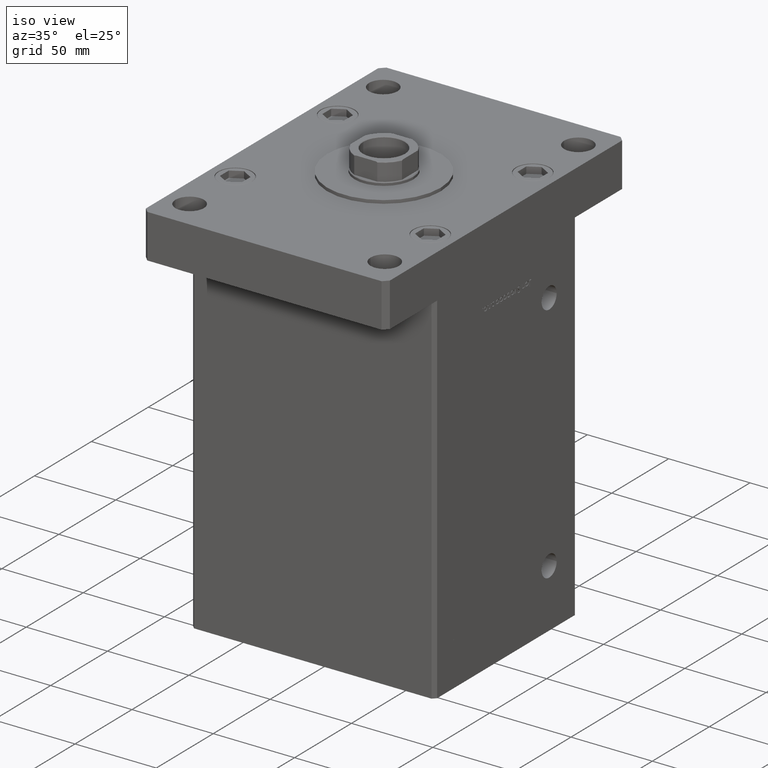
[diagram: clean part render]
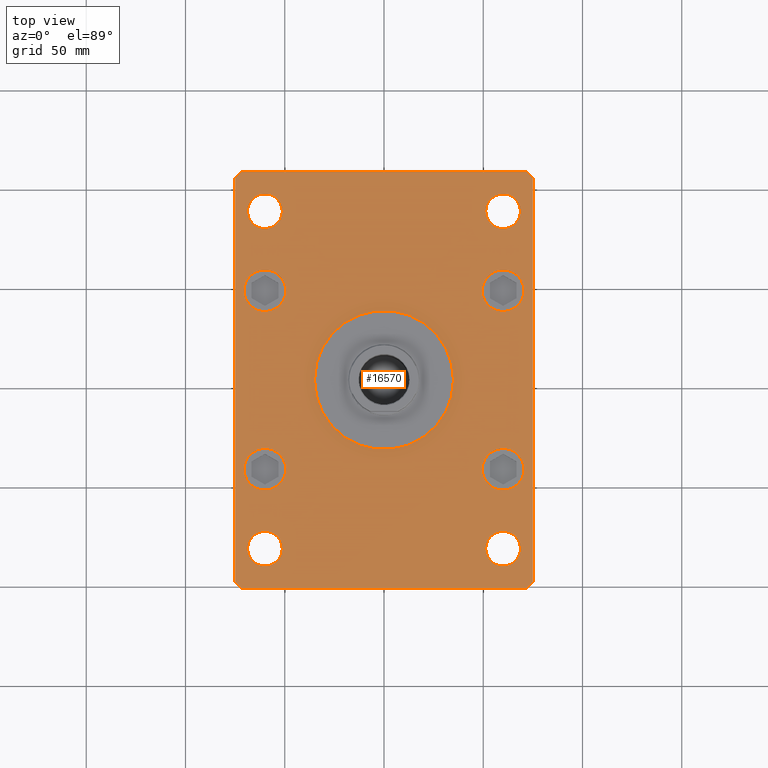
[diagram: tour spotlight — one face highlighted and labeled with its STEP entity id]
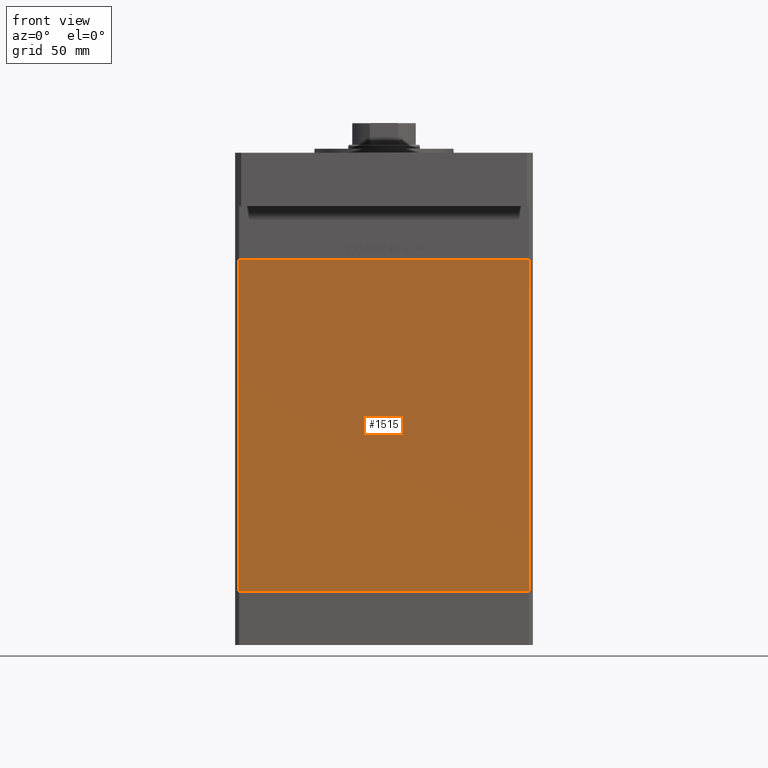
[diagram: tour spotlight — one face highlighted and labeled with its STEP entity id]
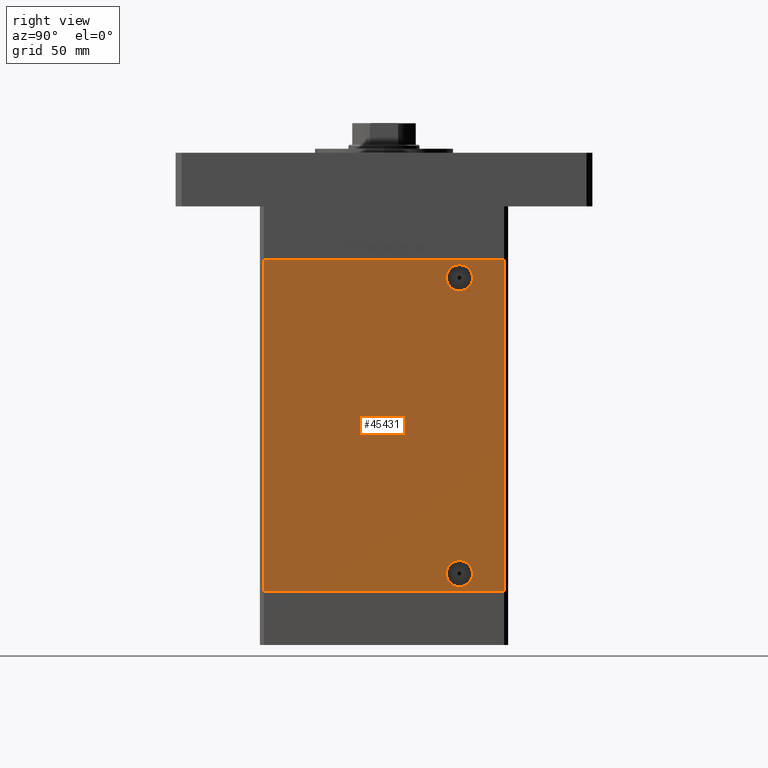
[diagram: tour spotlight — one face highlighted and labeled with its STEP entity id]
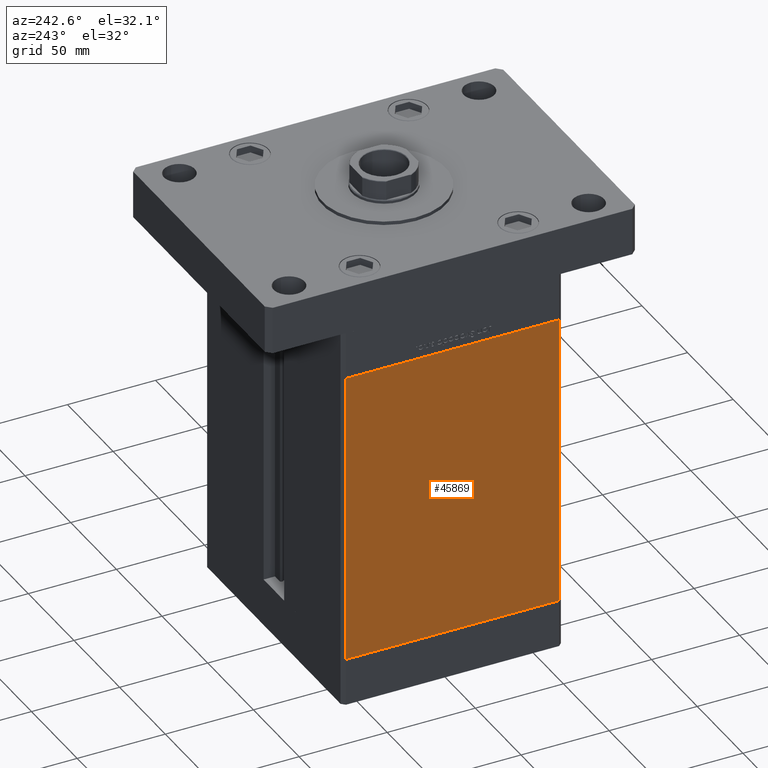
[diagram: tour spotlight — one face highlighted and labeled with its STEP entity id]
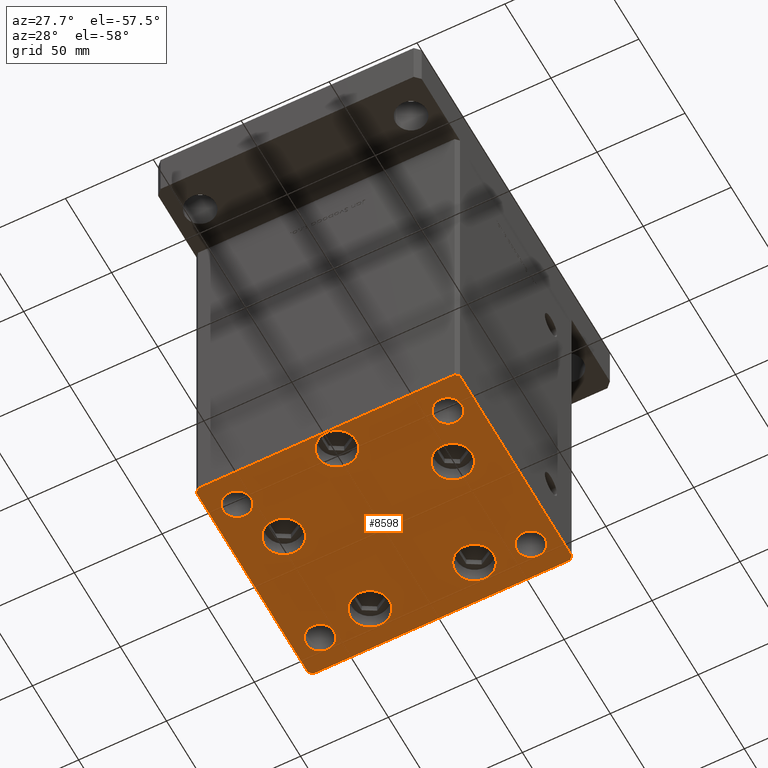
[diagram: tour spotlight — one face highlighted and labeled with its STEP entity id]
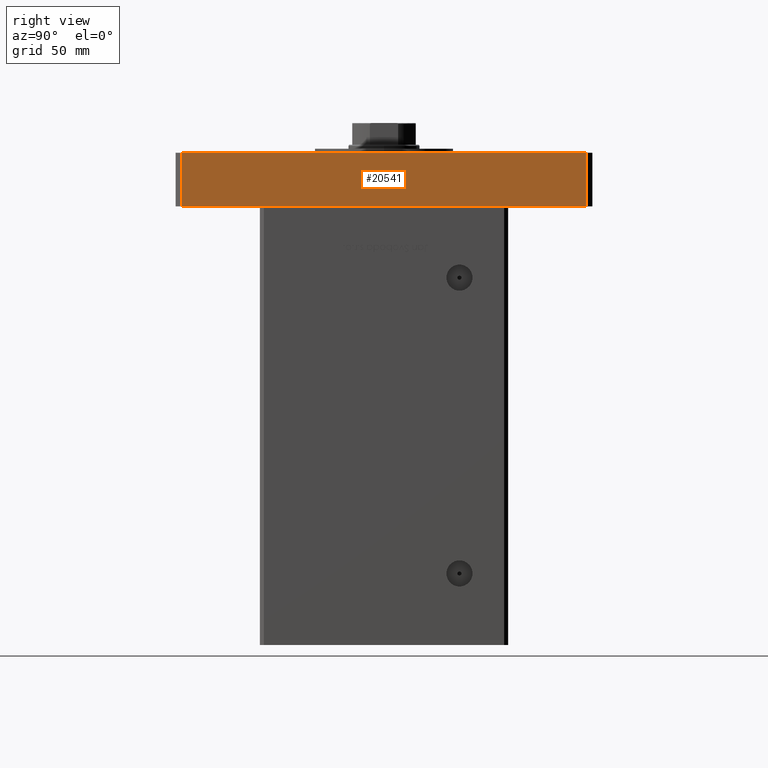
[diagram: tour spotlight — one face highlighted and labeled with its STEP entity id]
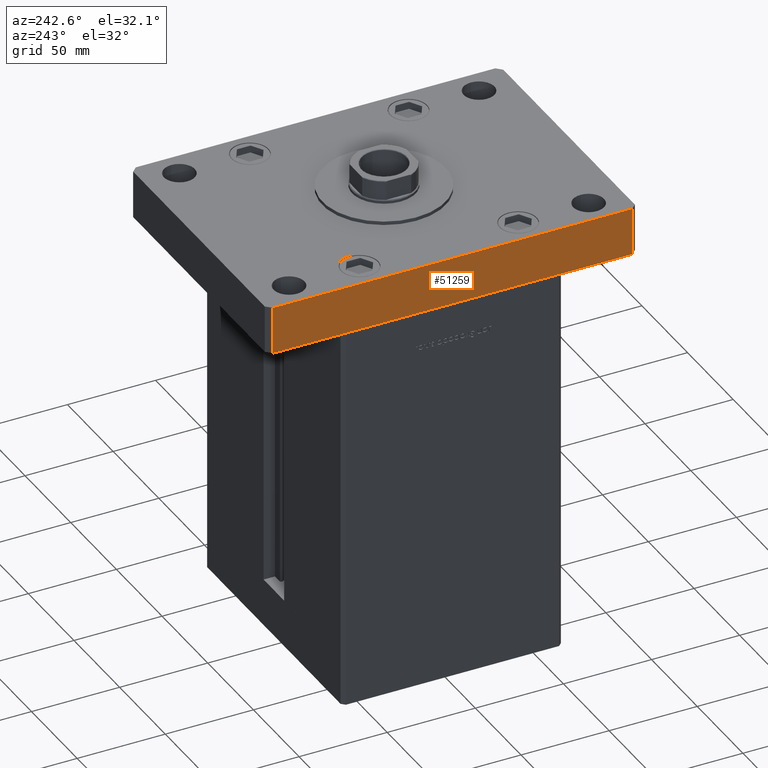
[diagram: tour spotlight — one face highlighted and labeled with its STEP entity id]
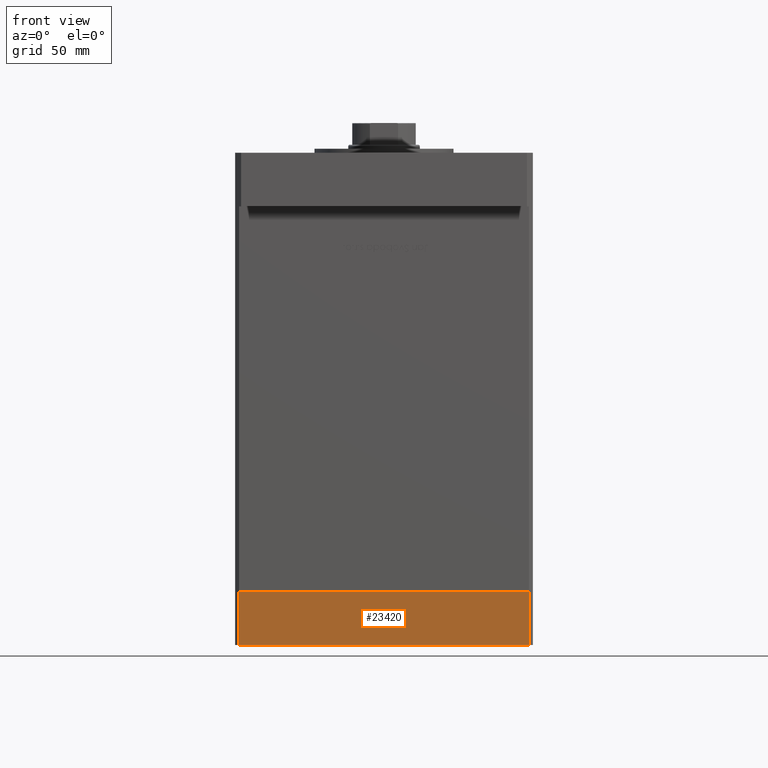
[diagram: tour spotlight — one face highlighted and labeled with its STEP entity id]
A machine part: a face-by-face anatomy tour. The part has 1308 B-rep faces; the first image is the clean iso view, then the 8 largest visible faces are spotlighted one at a time (largest first), each with its STEP entity span.

Face 1 — top view, entity #16570. In plain terms, the highlighted planar face has unit normal (0, 0, 1).
Definition (entity closure, byte-faithful):
#432 = CIRCLE ( 'NONE', #18582, 35.00000000000000711 ) ;
#536 = CARTESIAN_POINT ( 'NONE',  ( 60.00000000000000000, 45.00000000000000711, 27.00000000000000000 ) ) ;
#670 = DIRECTION ( 'NONE',  ( 0.7071067811865474617, -0.7071067811865474617, 0.000000000000000000 ) ) ;
#884 = CARTESIAN_POINT ( 'NONE',  ( -49.49999999999999289, -45.00000000000000000, 27.00000000000000000 ) ) ;
#1447 = VERTEX_POINT ( 'NONE', #8690 ) ;
#1792 = DIRECTION ( 'NONE',  ( -0.7071067811865459074, -0.7071067811865491270, 0.000000000000000000 ) ) ;
#1875 = DIRECTION ( 'NONE',  ( -1.000000000000000000, -1.927470528863118062E-16, 0.000000000000000000 ) ) ;
#2004 = VECTOR ( 'NONE', #1792, 1000.000000000000114 ) ;
#2051 = CARTESIAN_POINT ( 'NONE',  ( -60.00000000000000711, 84.99999999999997158, 27.00000000000000000 ) ) ;
#2070 = FACE_BOUND ( 'NONE', #20924, .T. ) ;
#2522 = CARTESIAN_POINT ( 'NONE',  ( -68.74999999999997158, -85.00000000000001421, 27.00000000000000000 ) ) ;
#2629 = DIRECTION ( 'NONE',  ( 1.000000000000000000, 0.000000000000000000, 0.000000000000000000 ) ) ;
#4091 = EDGE_LOOP ( 'NONE', ( #15554, #35023 ) ) ;
#4170 = CARTESIAN_POINT ( 'NONE',  ( -75.00000000000001421, 102.0000000000000000, 27.00000000000000000 ) ) ;
#4366 = ORIENTED_EDGE ( 'NONE', *, *, #21925, .F. ) ;
#4409 = CARTESIAN_POINT ( 'NONE',  ( -72.00000000000002842, 105.0000000000000000, 27.00000000000000000 ) ) ;
#4479 = AXIS2_PLACEMENT_3D ( 'NONE', #48391, #7733, #7995 ) ;
#4640 = ORIENTED_EDGE ( 'NONE', *, *, #51140, .F. ) ;
#4670 = DIRECTION ( 'NONE',  ( 1.000000000000000000, 0.000000000000000000, 0.000000000000000000 ) ) ;
#4689 = CARTESIAN_POINT ( 'NONE',  ( 49.50000000000000000, -45.00000000000000711, 27.00000000000000000 ) ) ;
#4803 = DIRECTION ( 'NONE',  ( 0.000000000000000000, 0.000000000000000000, 1.000000000000000000 ) ) ;
#4919 = VERTEX_POINT ( 'NONE', #36691 ) ;
#5155 = DIRECTION ( 'NONE',  ( -0.7071067811865426878, 0.7071067811865524577, 0.000000000000000000 ) ) ;
#6072 = VERTEX_POINT ( 'NONE', #48309 ) ;
#6126 = FACE_BOUND ( 'NONE', #40960, .T. ) ;
#6165 = CARTESIAN_POINT ( 'NONE',  ( -59.99999999999997158, -85.00000000000001421, 27.00000000000000000 ) ) ;
#6192 = DIRECTION ( 'NONE',  ( 1.000000000000000000, 0.000000000000000000, 0.000000000000000000 ) ) ;
#6216 = CIRCLE ( 'NONE', #4479, 8.750000000000007105 ) ;
#6843 = DIRECTION ( 'NONE',  ( 1.000000000000000000, 0.000000000000000000, 0.000000000000000000 ) ) ;
#7101 = AXIS2_PLACEMENT_3D ( 'NONE', #51826, #31487, #48016 ) ;
#7517 = EDGE_CURVE ( 'NONE', #32208, #31673, #6216, .T. ) ;
#7733 = DIRECTION ( 'NONE',  ( 0.000000000000000000, 0.000000000000000000, 1.000000000000000000 ) ) ;
#7806 = VERTEX_POINT ( 'NONE', #28472 ) ;
#7995 = DIRECTION ( 'NONE',  ( 1.000000000000000000, 0.000000000000000000, 0.000000000000000000 ) ) ;
#8145 = VERTEX_POINT ( 'NONE', #30817 ) ;
#8586 = VERTEX_POINT ( 'NONE', #4409 ) ;
#8690 = CARTESIAN_POINT ( 'NONE',  ( 68.75000000000000000, 84.99999999999998579, 27.00000000000000000 ) ) ;
#8988 = DIRECTION ( 'NONE',  ( 0.000000000000000000, 0.000000000000000000, 1.000000000000000000 ) ) ;
#9308 = CIRCLE ( 'NONE', #28339, 8.750000000000007105 ) ;
#9421 = EDGE_CURVE ( 'NONE', #1447, #49477, #31326, .T. ) ;
#9519 = EDGE_CURVE ( 'NONE', #36938, #35802, #45005, .T. ) ;
#9555 = CARTESIAN_POINT ( 'NONE',  ( 59.99999999999997158, -85.00000000000001421, 27.00000000000000000 ) ) ;
#9638 = DIRECTION ( 'NONE',  ( 1.000000000000000000, 0.000000000000000000, 0.000000000000000000 ) ) ;
#9665 = ORIENTED_EDGE ( 'NONE', *, *, #27869, .F. ) ;
#9717 = CARTESIAN_POINT ( 'NONE',  ( 35.00000000000000711, 4.286263797015737285E-15, 27.00000000000000000 ) ) ;
#10119 = CIRCLE ( 'NONE', #52513, 8.750000000000007105 ) ;
#10149 = ORIENTED_EDGE ( 'NONE', *, *, #17158, .F. ) ;
#10187 = DIRECTION ( 'NONE',  ( 0.000000000000000000, 0.000000000000000000, 1.000000000000000000 ) ) ;
#10477 = ORIENTED_EDGE ( 'NONE', *, *, #19854, .T. ) ;
#10789 = CIRCLE ( 'NONE', #42813, 10.49999999999999467 ) ;
#11282 = ORIENTED_EDGE ( 'NONE', *, *, #26685, .T. ) ;
#11648 = VECTOR ( 'NONE', #5155, 1000.000000000000000 ) ;
#11718 = CARTESIAN_POINT ( 'NONE',  ( -74.99999999999998579, -102.0000000000000142, 27.00000000000000000 ) ) ;
#11935 = AXIS2_PLACEMENT_3D ( 'NONE', #52517, #35988, #6192 ) ;
#11975 = ORIENTED_EDGE ( 'NONE', *, *, #39046, .F. ) ;
#12067 = DIRECTION ( 'NONE',  ( 0.000000000000000000, 0.000000000000000000, 1.000000000000000000 ) ) ;
#12328 = DIRECTION ( 'NONE',  ( 1.000000000000000000, 0.000000000000000000, -0.000000000000000000 ) ) ;
#12712 = VECTOR ( 'NONE', #29304, 1000.000000000000000 ) ;
#12742 = ORIENTED_EDGE ( 'NONE', *, *, #31563, .T. ) ;
#12779 = CARTESIAN_POINT ( 'NONE',  ( 75.00000000000000000, -101.9999999999999005, 27.00000000000000000 ) ) ;
#12865 = EDGE_LOOP ( 'NONE', ( #15080, #18352 ) ) ;
#14244 = VERTEX_POINT ( 'NONE', #34189 ) ;
#14280 = CARTESIAN_POINT ( 'NONE',  ( 51.24999999999998579, 84.99999999999998579, 27.00000000000000000 ) ) ;
#14344 = DIRECTION ( 'NONE',  ( 1.000000000000000000, 0.000000000000000000, 0.000000000000000000 ) ) ;
#14348 = CARTESIAN_POINT ( 'NONE',  ( 72.00000000000004263, 105.0000000000000284, 27.00000000000000000 ) ) ;
#14421 = VECTOR ( 'NONE', #44049, 1000.000000000000114 ) ;
#14803 = EDGE_LOOP ( 'NONE', ( #9665, #19839 ) ) ;
#14926 = EDGE_CURVE ( 'NONE', #17852, #18179, #27952, .T. ) ;
#15080 = ORIENTED_EDGE ( 'NONE', *, *, #48992, .F. ) ;
#15554 = ORIENTED_EDGE ( 'NONE', *, *, #16457, .F. ) ;
#15575 = EDGE_CURVE ( 'NONE', #8586, #36938, #42971, .T. ) ;
#16130 = CARTESIAN_POINT ( 'NONE',  ( 0.000000000000000000, 0.000000000000000000, 27.00000000000000000 ) ) ;
#16158 = CARTESIAN_POINT ( 'NONE',  ( 75.00000000000001421, 102.0000000000000142, 27.00000000000000000 ) ) ;
#16457 = EDGE_CURVE ( 'NONE', #49477, #1447, #49619, .T. ) ;
#16570 = ADVANCED_FACE ( 'NONE', ( #43244, #6126, #39185, #2070, #51670, #32665, #52977, #23998, #49194, #53252 ), #37246, .T. ) ;
#16755 = DIRECTION ( 'NONE',  ( 0.000000000000000000, 0.000000000000000000, 1.000000000000000000 ) ) ;
#17133 = CIRCLE ( 'NONE', #52588, 8.750000000000007105 ) ;
#17158 = EDGE_CURVE ( 'NONE', #4919, #44154, #50513, .T. ) ;
#17175 = ORIENTED_EDGE ( 'NONE', *, *, #35807, .F. ) ;
#17281 = DIRECTION ( 'NONE',  ( 1.000000000000000000, 0.000000000000000000, 0.000000000000000000 ) ) ;
#17682 = CARTESIAN_POINT ( 'NONE',  ( 60.00000000000000000, -45.00000000000000711, 27.00000000000000000 ) ) ;
#17731 = VECTOR ( 'NONE', #1875, 1000.000000000000000 ) ;
#17852 = VERTEX_POINT ( 'NONE', #53162 ) ;
#17889 = DIRECTION ( 'NONE',  ( 0.000000000000000000, 0.000000000000000000, 1.000000000000000000 ) ) ;
#17928 = DIRECTION ( 'NONE',  ( 0.000000000000000000, 0.000000000000000000, 1.000000000000000000 ) ) ;
#18179 = VERTEX_POINT ( 'NONE', #42498 ) ;
#18186 = CARTESIAN_POINT ( 'NONE',  ( 51.24999999999995737, -85.00000000000001421, 27.00000000000000000 ) ) ;
#18334 = CARTESIAN_POINT ( 'NONE',  ( 60.00000000000000000, 84.99999999999998579, 27.00000000000000000 ) ) ;
#18352 = ORIENTED_EDGE ( 'NONE', *, *, #14926, .F. ) ;
#18582 = AXIS2_PLACEMENT_3D ( 'NONE', #42336, #38017, #49952 ) ;
#19645 = DIRECTION ( 'NONE',  ( 0.000000000000000000, 0.000000000000000000, 1.000000000000000000 ) ) ;
#19839 = ORIENTED_EDGE ( 'NONE', *, *, #7517, .F. ) ;
#19854 = EDGE_CURVE ( 'NONE', #8145, #6072, #46386, .T. ) ;
#20112 = AXIS2_PLACEMENT_3D ( 'NONE', #52963, #19645, #52698 ) ;
#20660 = ORIENTED_EDGE ( 'NONE', *, *, #49223, .T. ) ;
#20924 = EDGE_LOOP ( 'NONE', ( #52792, #40611 ) ) ;
#20945 = VERTEX_POINT ( 'NONE', #41236 ) ;
#20969 = CIRCLE ( 'NONE', #20112, 10.50000000000000178 ) ;
#21262 = LINE ( 'NONE', #37794, #39633 ) ;
#21470 = CARTESIAN_POINT ( 'NONE',  ( -71.99999999999998579, -105.0000000000000142, 27.00000000000000000 ) ) ;
#21686 = CARTESIAN_POINT ( 'NONE',  ( 75.00000000000001421, 102.0000000000000142, 27.00000000000000000 ) ) ;
#21925 = EDGE_CURVE ( 'NONE', #36166, #7806, #35087, .T. ) ;
#21946 = CIRCLE ( 'NONE', #34072, 8.750000000000007105 ) ;
#22015 = CIRCLE ( 'NONE', #51470, 10.50000000000000178 ) ;
#22283 = CARTESIAN_POINT ( 'NONE',  ( -60.00000000000000711, 84.99999999999997158, 27.00000000000000000 ) ) ;
#22461 = DIRECTION ( 'NONE',  ( 0.000000000000000000, 0.000000000000000000, 1.000000000000000000 ) ) ;
#22562 = ORIENTED_EDGE ( 'NONE', *, *, #33828, .F. ) ;
#23645 = DIRECTION ( 'NONE',  ( 0.000000000000000000, 0.000000000000000000, 1.000000000000000000 ) ) ;
#23998 = FACE_BOUND ( 'NONE', #46200, .T. ) ;
#24156 = CARTESIAN_POINT ( 'NONE',  ( -75.00000000000001421, 102.0000000000000000, 27.00000000000000000 ) ) ;
#24341 = CARTESIAN_POINT ( 'NONE',  ( -60.00000000000000000, 45.00000000000001421, 27.00000000000000000 ) ) ;
#24421 = DIRECTION ( 'NONE',  ( 1.360567432138672081E-16, -1.000000000000000000, 0.000000000000000000 ) ) ;
#24598 = VERTEX_POINT ( 'NONE', #26041 ) ;
#25130 = EDGE_CURVE ( 'NONE', #38694, #25786, #29076, .T. ) ;
#25621 = ORIENTED_EDGE ( 'NONE', *, *, #33431, .T. ) ;
#25786 = VERTEX_POINT ( 'NONE', #41101 ) ;
#26041 = CARTESIAN_POINT ( 'NONE',  ( -51.24999999999996447, -85.00000000000001421, 27.00000000000000000 ) ) ;
#26081 = DIRECTION ( 'NONE',  ( 1.000000000000000000, 0.000000000000000000, 0.000000000000000000 ) ) ;
#26092 = DIRECTION ( 'NONE',  ( 0.000000000000000000, 0.000000000000000000, 1.000000000000000000 ) ) ;
#26318 = CARTESIAN_POINT ( 'NONE',  ( 60.00000000000000000, -45.00000000000000711, 27.00000000000000000 ) ) ;
#26422 = ORIENTED_EDGE ( 'NONE', *, *, #41492, .F. ) ;
#26685 = EDGE_CURVE ( 'NONE', #6072, #20945, #34878, .T. ) ;
#26725 = DIRECTION ( 'NONE',  ( 1.000000000000000000, 0.000000000000000000, 0.000000000000000000 ) ) ;
#27194 = VERTEX_POINT ( 'NONE', #884 ) ;
#27628 = ORIENTED_EDGE ( 'NONE', *, *, #33780, .F. ) ;
#27674 = ORIENTED_EDGE ( 'NONE', *, *, #43458, .F. ) ;
#27869 = EDGE_CURVE ( 'NONE', #31673, #32208, #10119, .T. ) ;
#27952 = CIRCLE ( 'NONE', #34890, 10.49999999999999467 ) ;
#28339 = AXIS2_PLACEMENT_3D ( 'NONE', #22283, #34228, #26081 ) ;
#28416 = EDGE_LOOP ( 'NONE', ( #4640, #10149 ) ) ;
#28472 = CARTESIAN_POINT ( 'NONE',  ( -35.00000000000000711, 0.000000000000000000, 27.00000000000000000 ) ) ;
#28984 = EDGE_CURVE ( 'NONE', #25786, #38694, #9308, .T. ) ;
#29076 = CIRCLE ( 'NONE', #39481, 8.750000000000007105 ) ;
#29304 = DIRECTION ( 'NONE',  ( 6.802837160693364103E-17, 1.000000000000000000, 0.000000000000000000 ) ) ;
#29743 = AXIS2_PLACEMENT_3D ( 'NONE', #17682, #42577, #4670 ) ;
#29779 = VERTEX_POINT ( 'NONE', #16158 ) ;
#30673 = VECTOR ( 'NONE', #46116, 1000.000000000000000 ) ;
#30817 = CARTESIAN_POINT ( 'NONE',  ( -71.99999999999998579, -105.0000000000000142, 27.00000000000000000 ) ) ;
#31326 = CIRCLE ( 'NONE', #7101, 8.750000000000007105 ) ;
#31487 = DIRECTION ( 'NONE',  ( 0.000000000000000000, 0.000000000000000000, 1.000000000000000000 ) ) ;
#31563 = EDGE_CURVE ( 'NONE', #20945, #29779, #42824, .T. ) ;
#31673 = VERTEX_POINT ( 'NONE', #18186 ) ;
#32208 = VERTEX_POINT ( 'NONE', #50245 ) ;
#32484 = AXIS2_PLACEMENT_3D ( 'NONE', #37731, #8988, #33674 ) ;
#32665 = FACE_OUTER_BOUND ( 'NONE', #47657, .T. ) ;
#33431 = EDGE_CURVE ( 'NONE', #35802, #8145, #21262, .T. ) ;
#33674 = DIRECTION ( 'NONE',  ( 1.000000000000000000, 0.000000000000000000, 0.000000000000000000 ) ) ;
#33780 = EDGE_CURVE ( 'NONE', #24598, #36466, #17133, .T. ) ;
#33828 = EDGE_CURVE ( 'NONE', #50546, #27194, #44804, .T. ) ;
#34072 = AXIS2_PLACEMENT_3D ( 'NONE', #6165, #35435, #2629 ) ;
#34189 = CARTESIAN_POINT ( 'NONE',  ( -49.49999999999999289, 45.00000000000001421, 27.00000000000000000 ) ) ;
#34228 = DIRECTION ( 'NONE',  ( 0.000000000000000000, 0.000000000000000000, 1.000000000000000000 ) ) ;
#34844 = DIRECTION ( 'NONE',  ( 0.000000000000000000, 0.000000000000000000, 1.000000000000000000 ) ) ;
#34878 = LINE ( 'NONE', #52464, #14421 ) ;
#34890 = AXIS2_PLACEMENT_3D ( 'NONE', #47309, #10187, #26725 ) ;
#35023 = ORIENTED_EDGE ( 'NONE', *, *, #9421, .F. ) ;
#35087 = CIRCLE ( 'NONE', #32484, 35.00000000000000711 ) ;
#35435 = DIRECTION ( 'NONE',  ( 0.000000000000000000, 0.000000000000000000, 1.000000000000000000 ) ) ;
#35802 = VERTEX_POINT ( 'NONE', #11718 ) ;
#35807 = EDGE_CURVE ( 'NONE', #27194, #50546, #39076, .T. ) ;
#35988 = DIRECTION ( 'NONE',  ( 0.000000000000000000, 0.000000000000000000, 1.000000000000000000 ) ) ;
#36166 = VERTEX_POINT ( 'NONE', #9717 ) ;
#36466 = VERTEX_POINT ( 'NONE', #2522 ) ;
#36691 = CARTESIAN_POINT ( 'NONE',  ( 70.50000000000000000, -45.00000000000000711, 27.00000000000000000 ) ) ;
#36913 = ORIENTED_EDGE ( 'NONE', *, *, #9519, .T. ) ;
#36938 = VERTEX_POINT ( 'NONE', #4170 ) ;
#37246 = PLANE ( 'NONE',  #43531 ) ;
#37566 = CARTESIAN_POINT ( 'NONE',  ( -70.50000000000000000, -45.00000000000000000, 27.00000000000000000 ) ) ;
#37731 = CARTESIAN_POINT ( 'NONE',  ( 0.000000000000000000, 0.000000000000000000, 27.00000000000000000 ) ) ;
#37794 = CARTESIAN_POINT ( 'NONE',  ( -74.99999999999998579, -102.0000000000000142, 27.00000000000000000 ) ) ;
#38017 = DIRECTION ( 'NONE',  ( 0.000000000000000000, 0.000000000000000000, 1.000000000000000000 ) ) ;
#38481 = LINE ( 'NONE', #21686, #11648 ) ;
#38694 = VERTEX_POINT ( 'NONE', #44896 ) ;
#39046 = EDGE_CURVE ( 'NONE', #14244, #40326, #20969, .T. ) ;
#39076 = CIRCLE ( 'NONE', #50348, 10.50000000000000178 ) ;
#39179 = CARTESIAN_POINT ( 'NONE',  ( -72.00000000000002842, 105.0000000000000000, 27.00000000000000000 ) ) ;
#39185 = FACE_BOUND ( 'NONE', #28416, .T. ) ;
#39481 = AXIS2_PLACEMENT_3D ( 'NONE', #2051, #34844, #9638 ) ;
#39633 = VECTOR ( 'NONE', #670, 1000.000000000000114 ) ;
#40326 = VERTEX_POINT ( 'NONE', #42739 ) ;
#40611 = ORIENTED_EDGE ( 'NONE', *, *, #25130, .F. ) ;
#40960 = EDGE_LOOP ( 'NONE', ( #27674, #11975 ) ) ;
#41101 = CARTESIAN_POINT ( 'NONE',  ( -68.75000000000000000, 84.99999999999997158, 27.00000000000000000 ) ) ;
#41201 = ORIENTED_EDGE ( 'NONE', *, *, #45906, .F. ) ;
#41236 = CARTESIAN_POINT ( 'NONE',  ( 75.00000000000000000, -101.9999999999999005, 27.00000000000000000 ) ) ;
#41311 = VERTEX_POINT ( 'NONE', #49026 ) ;
#41492 = EDGE_CURVE ( 'NONE', #36466, #24598, #21946, .T. ) ;
#41717 = DIRECTION ( 'NONE',  ( 1.000000000000000000, 0.000000000000000000, 0.000000000000000000 ) ) ;
#42336 = CARTESIAN_POINT ( 'NONE',  ( 0.000000000000000000, 0.000000000000000000, 27.00000000000000000 ) ) ;
#42498 = CARTESIAN_POINT ( 'NONE',  ( 49.50000000000000000, 45.00000000000000711, 27.00000000000000000 ) ) ;
#42577 = DIRECTION ( 'NONE',  ( 0.000000000000000000, 0.000000000000000000, 1.000000000000000000 ) ) ;
#42580 = EDGE_LOOP ( 'NONE', ( #41201, #4366 ) ) ;
#42600 = DIRECTION ( 'NONE',  ( 1.000000000000000000, 0.000000000000000000, 0.000000000000000000 ) ) ;
#42739 = CARTESIAN_POINT ( 'NONE',  ( -70.50000000000000000, 45.00000000000001421, 27.00000000000000000 ) ) ;
#42813 = AXIS2_PLACEMENT_3D ( 'NONE', #536, #17889, #41717 ) ;
#42824 = LINE ( 'NONE', #12779, #12712 ) ;
#42971 = LINE ( 'NONE', #39179, #2004 ) ;
#43244 = FACE_BOUND ( 'NONE', #42580, .T. ) ;
#43458 = EDGE_CURVE ( 'NONE', #40326, #14244, #22015, .T. ) ;
#43531 = AXIS2_PLACEMENT_3D ( 'NONE', #16130, #12067, #12328 ) ;
#43736 = AXIS2_PLACEMENT_3D ( 'NONE', #26318, #17928, #47168 ) ;
#43841 = CARTESIAN_POINT ( 'NONE',  ( -59.99999999999997158, -85.00000000000001421, 27.00000000000000000 ) ) ;
#44049 = DIRECTION ( 'NONE',  ( 0.7071067811865459074, 0.7071067811865491270, 0.000000000000000000 ) ) ;
#44154 = VERTEX_POINT ( 'NONE', #4689 ) ;
#44737 = ORIENTED_EDGE ( 'NONE', *, *, #45324, .T. ) ;
#44804 = CIRCLE ( 'NONE', #11935, 10.50000000000000178 ) ;
#44896 = CARTESIAN_POINT ( 'NONE',  ( -51.25000000000000000, 84.99999999999997158, 27.00000000000000000 ) ) ;
#45005 = LINE ( 'NONE', #24156, #50408 ) ;
#45191 = ORIENTED_EDGE ( 'NONE', *, *, #15575, .T. ) ;
#45324 = EDGE_CURVE ( 'NONE', #29779, #41311, #38481, .T. ) ;
#45906 = EDGE_CURVE ( 'NONE', #7806, #36166, #432, .T. ) ;
#46116 = DIRECTION ( 'NONE',  ( 1.000000000000000000, 7.709882115452476194E-16, 0.000000000000000000 ) ) ;
#46200 = EDGE_LOOP ( 'NONE', ( #22562, #17175 ) ) ;
#46386 = LINE ( 'NONE', #21470, #30673 ) ;
#47168 = DIRECTION ( 'NONE',  ( 1.000000000000000000, 0.000000000000000000, 0.000000000000000000 ) ) ;
#47309 = CARTESIAN_POINT ( 'NONE',  ( 60.00000000000000000, 45.00000000000000711, 27.00000000000000000 ) ) ;
#47657 = EDGE_LOOP ( 'NONE', ( #10477, #11282, #12742, #44737, #20660, #45191, #36913, #25621 ) ) ;
#48016 = DIRECTION ( 'NONE',  ( 1.000000000000000000, 0.000000000000000000, 0.000000000000000000 ) ) ;
#48040 = CARTESIAN_POINT ( 'NONE',  ( -60.00000000000000000, -45.00000000000000000, 27.00000000000000000 ) ) ;
#48086 = CIRCLE ( 'NONE', #43736, 10.49999999999999467 ) ;
#48309 = CARTESIAN_POINT ( 'NONE',  ( 72.00000000000001421, -104.9999999999999005, 27.00000000000000000 ) ) ;
#48391 = CARTESIAN_POINT ( 'NONE',  ( 59.99999999999997158, -85.00000000000001421, 27.00000000000000000 ) ) ;
#48765 = AXIS2_PLACEMENT_3D ( 'NONE', #18334, #4803, #17281 ) ;
#48992 = EDGE_CURVE ( 'NONE', #18179, #17852, #10789, .T. ) ;
#49026 = CARTESIAN_POINT ( 'NONE',  ( 72.00000000000004263, 105.0000000000000284, 27.00000000000000000 ) ) ;
#49194 = FACE_BOUND ( 'NONE', #12865, .T. ) ;
#49223 = EDGE_CURVE ( 'NONE', #41311, #8586, #51473, .T. ) ;
#49477 = VERTEX_POINT ( 'NONE', #14280 ) ;
#49619 = CIRCLE ( 'NONE', #48765, 8.750000000000007105 ) ;
#49952 = DIRECTION ( 'NONE',  ( 1.000000000000000000, 0.000000000000000000, 0.000000000000000000 ) ) ;
#50245 = CARTESIAN_POINT ( 'NONE',  ( 68.74999999999997158, -85.00000000000001421, 27.00000000000000000 ) ) ;
#50348 = AXIS2_PLACEMENT_3D ( 'NONE', #48040, #23645, #6843 ) ;
#50408 = VECTOR ( 'NONE', #24421, 1000.000000000000000 ) ;
#50513 = CIRCLE ( 'NONE', #29743, 10.49999999999999467 ) ;
#50546 = VERTEX_POINT ( 'NONE', #37566 ) ;
#51140 = EDGE_CURVE ( 'NONE', #44154, #4919, #48086, .T. ) ;
#51470 = AXIS2_PLACEMENT_3D ( 'NONE', #24341, #16755, #52795 ) ;
#51473 = LINE ( 'NONE', #14348, #17731 ) ;
#51670 = FACE_BOUND ( 'NONE', #53065, .T. ) ;
#51826 = CARTESIAN_POINT ( 'NONE',  ( 60.00000000000000000, 84.99999999999998579, 27.00000000000000000 ) ) ;
#52464 = CARTESIAN_POINT ( 'NONE',  ( 72.00000000000001421, -104.9999999999999005, 27.00000000000000000 ) ) ;
#52513 = AXIS2_PLACEMENT_3D ( 'NONE', #9555, #26092, #42600 ) ;
#52517 = CARTESIAN_POINT ( 'NONE',  ( -60.00000000000000000, -45.00000000000000000, 27.00000000000000000 ) ) ;
#52588 = AXIS2_PLACEMENT_3D ( 'NONE', #43841, #22461, #14344 ) ;
#52698 = DIRECTION ( 'NONE',  ( 1.000000000000000000, 0.000000000000000000, 0.000000000000000000 ) ) ;
#52792 = ORIENTED_EDGE ( 'NONE', *, *, #28984, .F. ) ;
#52795 = DIRECTION ( 'NONE',  ( 1.000000000000000000, 0.000000000000000000, 0.000000000000000000 ) ) ;
#52963 = CARTESIAN_POINT ( 'NONE',  ( -60.00000000000000000, 45.00000000000001421, 27.00000000000000000 ) ) ;
#52977 = FACE_BOUND ( 'NONE', #4091, .T. ) ;
#53065 = EDGE_LOOP ( 'NONE', ( #26422, #27628 ) ) ;
#53162 = CARTESIAN_POINT ( 'NONE',  ( 70.50000000000000000, 45.00000000000000711, 27.00000000000000000 ) ) ;
#53252 = FACE_BOUND ( 'NONE', #14803, .T. ) ;

Face 2 — front view, entity #1515. In plain terms, the highlighted planar face has unit normal (0, 1, 0).
Definition (entity closure, byte-faithful):
#137 = ORIENTED_EDGE ( 'NONE', *, *, #43573, .T. ) ;
#388 = VECTOR ( 'NONE', #34101, 1000.000000000000000 ) ;
#1401 = LINE ( 'NONE', #6521, #49870 ) ;
#1492 = CARTESIAN_POINT ( 'NONE',  ( -72.99999999999998579, -62.50000000000000000, 0.000000000000000000 ) ) ;
#1515 = ADVANCED_FACE ( 'NONE', ( #5431 ), #13839, .F. ) ;
#2000 = CARTESIAN_POINT ( 'NONE',  ( -72.99999999999998579, -62.50000000000000000, 0.000000000000000000 ) ) ;
#3787 = CARTESIAN_POINT ( 'NONE',  ( 72.99999999999998579, -62.50000000000000000, 167.0000000000000000 ) ) ;
#4680 = VECTOR ( 'NONE', #38857, 1000.000000000000000 ) ;
#5096 = LINE ( 'NONE', #33286, #388 ) ;
#5431 = FACE_OUTER_BOUND ( 'NONE', #33424, .T. ) ;
#6521 = CARTESIAN_POINT ( 'NONE',  ( -72.99999999999998579, -62.50000000000000000, 167.0000000000000000 ) ) ;
#8173 = ORIENTED_EDGE ( 'NONE', *, *, #52319, .F. ) ;
#8298 = VERTEX_POINT ( 'NONE', #1492 ) ;
#8956 = CARTESIAN_POINT ( 'NONE',  ( -72.99999999999998579, -62.50000000000000000, 167.0000000000000000 ) ) ;
#9218 = VERTEX_POINT ( 'NONE', #41273 ) ;
#9591 = LINE ( 'NONE', #2000, #4680 ) ;
#10323 = DIRECTION ( 'NONE',  ( 1.000000000000000000, 0.000000000000000000, 0.000000000000000000 ) ) ;
#11250 = VERTEX_POINT ( 'NONE', #34165 ) ;
#13111 = AXIS2_PLACEMENT_3D ( 'NONE', #8956, #50969, #25776 ) ;
#13839 = PLANE ( 'NONE',  #13111 ) ;
#16027 = EDGE_CURVE ( 'NONE', #11250, #48398, #29259, .T. ) ;
#17607 = VECTOR ( 'NONE', #45779, 1000.000000000000000 ) ;
#25776 = DIRECTION ( 'NONE',  ( 0.000000000000000000, -0.000000000000000000, 1.000000000000000000 ) ) ;
#28852 = CARTESIAN_POINT ( 'NONE',  ( 72.99999999999998579, -62.50000000000000000, 0.000000000000000000 ) ) ;
#29259 = LINE ( 'NONE', #3787, #17607 ) ;
#30380 = ORIENTED_EDGE ( 'NONE', *, *, #48447, .T. ) ;
#31687 = ORIENTED_EDGE ( 'NONE', *, *, #16027, .F. ) ;
#33286 = CARTESIAN_POINT ( 'NONE',  ( -72.99999999999998579, -62.50000000000000000, 167.0000000000000000 ) ) ;
#33424 = EDGE_LOOP ( 'NONE', ( #30380, #31687, #8173, #137 ) ) ;
#34101 = DIRECTION ( 'NONE',  ( -0.000000000000000000, -0.000000000000000000, -1.000000000000000000 ) ) ;
#34165 = CARTESIAN_POINT ( 'NONE',  ( 72.99999999999998579, -62.50000000000000000, 167.0000000000000000 ) ) ;
#38857 = DIRECTION ( 'NONE',  ( 1.000000000000000000, 0.000000000000000000, 0.000000000000000000 ) ) ;
#41273 = CARTESIAN_POINT ( 'NONE',  ( -72.99999999999998579, -62.50000000000000000, 167.0000000000000000 ) ) ;
#43573 = EDGE_CURVE ( 'NONE', #9218, #8298, #5096, .T. ) ;
#45779 = DIRECTION ( 'NONE',  ( -0.000000000000000000, -0.000000000000000000, -1.000000000000000000 ) ) ;
#48398 = VERTEX_POINT ( 'NONE', #28852 ) ;
#48447 = EDGE_CURVE ( 'NONE', #8298, #48398, #9591, .T. ) ;
#49870 = VECTOR ( 'NONE', #10323, 1000.000000000000000 ) ;
#50969 = DIRECTION ( 'NONE',  ( 0.000000000000000000, 1.000000000000000000, 0.000000000000000000 ) ) ;
#52319 = EDGE_CURVE ( 'NONE', #9218, #11250, #1401, .T. ) ;

Face 3 — right view, entity #45431. In plain terms, the highlighted planar face has unit normal (1, -0, 0).
Definition (entity closure, byte-faithful):
#1166 = LINE ( 'NONE', #9295, #11010 ) ;
#1273 = EDGE_CURVE ( 'NONE', #21356, #47916, #1166, .T. ) ;
#1441 = DIRECTION ( 'NONE',  ( -0.000000000000000000, -0.000000000000000000, -1.000000000000000000 ) ) ;
#1479 = ORIENTED_EDGE ( 'NONE', *, *, #50400, .F. ) ;
#1752 = VERTEX_POINT ( 'NONE', #10182 ) ;
#2268 = VECTOR ( 'NONE', #15832, 1000.000000000000000 ) ;
#2460 = DIRECTION ( 'NONE',  ( -0.000000000000000000, -0.000000000000000000, -1.000000000000000000 ) ) ;
#2867 = ORIENTED_EDGE ( 'NONE', *, *, #42592, .F. ) ;
#2934 = ORIENTED_EDGE ( 'NONE', *, *, #1273, .F. ) ;
#3009 = AXIS2_PLACEMENT_3D ( 'NONE', #36468, #24549, #49212 ) ;
#5576 = CARTESIAN_POINT ( 'NONE',  ( 74.99999999999998579, -60.50000000000000000, 167.0000000000000000 ) ) ;
#5831 = AXIS2_PLACEMENT_3D ( 'NONE', #35555, #52083, #18232 ) ;
#6247 = DIRECTION ( 'NONE',  ( -2.293849224432141861E-16, -1.000000000000000000, 0.000000000000000000 ) ) ;
#6497 = AXIS2_PLACEMENT_3D ( 'NONE', #24850, #41085, #53291 ) ;
#6683 = EDGE_CURVE ( 'NONE', #47766, #38878, #45980, .T. ) ;
#8499 = ORIENTED_EDGE ( 'NONE', *, *, #24144, .T. ) ;
#8777 = CARTESIAN_POINT ( 'NONE',  ( 75.00000000000001421, 44.58000000000001251, 158.0000000000000000 ) ) ;
#9194 = CARTESIAN_POINT ( 'NONE',  ( 75.00000000000001421, 60.50000000000000000, 167.0000000000000000 ) ) ;
#9295 = CARTESIAN_POINT ( 'NONE',  ( 75.00000000000001421, 60.50000000000000000, 167.0000000000000000 ) ) ;
#9924 = VECTOR ( 'NONE', #2460, 1000.000000000000000 ) ;
#10155 = VECTOR ( 'NONE', #6247, 1000.000000000000000 ) ;
#10182 = CARTESIAN_POINT ( 'NONE',  ( 74.99999999999998579, -60.50000000000000000, 0.000000000000000000 ) ) ;
#10717 = AXIS2_PLACEMENT_3D ( 'NONE', #40330, #12137, #28405 ) ;
#11010 = VECTOR ( 'NONE', #1441, 1000.000000000000000 ) ;
#12137 = DIRECTION ( 'NONE',  ( 1.000000000000000000, -2.275047181608927644E-16, 0.000000000000000000 ) ) ;
#13732 = CARTESIAN_POINT ( 'NONE',  ( 75.00000000000001421, 31.41999999999998394, 158.0000000000000000 ) ) ;
#13737 = EDGE_LOOP ( 'NONE', ( #17124, #2867 ) ) ;
#14886 = FACE_BOUND ( 'NONE', #21824, .T. ) ;
#15832 = DIRECTION ( 'NONE',  ( -2.293849224432141861E-16, -1.000000000000000000, 0.000000000000000000 ) ) ;
#16022 = VERTEX_POINT ( 'NONE', #33334 ) ;
#16414 = PLANE ( 'NONE',  #3009 ) ;
#17124 = ORIENTED_EDGE ( 'NONE', *, *, #6683, .F. ) ;
#18232 = DIRECTION ( 'NONE',  ( 0.000000000000000000, 1.000000000000000000, 0.000000000000000000 ) ) ;
#18996 = LINE ( 'NONE', #43360, #10155 ) ;
#21108 = EDGE_CURVE ( 'NONE', #37894, #1752, #27122, .T. ) ;
#21356 = VERTEX_POINT ( 'NONE', #9194 ) ;
#21824 = EDGE_LOOP ( 'NONE', ( #1479, #24285 ) ) ;
#22897 = LINE ( 'NONE', #45079, #2268 ) ;
#23016 = FACE_BOUND ( 'NONE', #13737, .T. ) ;
#24144 = EDGE_CURVE ( 'NONE', #21356, #37894, #22897, .T. ) ;
#24285 = ORIENTED_EDGE ( 'NONE', *, *, #28088, .F. ) ;
#24549 = DIRECTION ( 'NONE',  ( 1.000000000000000000, -2.293849224432142354E-16, 0.000000000000000000 ) ) ;
#24850 = CARTESIAN_POINT ( 'NONE',  ( 75.00000000000001421, 38.00000000000000000, 9.000000000000000000 ) ) ;
#25588 = CARTESIAN_POINT ( 'NONE',  ( 75.00000000000001421, 31.42000000000000171, 9.000000000000000000 ) ) ;
#27122 = LINE ( 'NONE', #31192, #9924 ) ;
#28088 = EDGE_CURVE ( 'NONE', #39128, #16022, #32678, .T. ) ;
#28405 = DIRECTION ( 'NONE',  ( 0.000000000000000000, 1.000000000000000000, 0.000000000000000000 ) ) ;
#31192 = CARTESIAN_POINT ( 'NONE',  ( 74.99999999999998579, -60.50000000000000000, 167.0000000000000000 ) ) ;
#31415 = FACE_OUTER_BOUND ( 'NONE', #39919, .T. ) ;
#32678 = CIRCLE ( 'NONE', #5831, 6.579999999999995630 ) ;
#32710 = EDGE_CURVE ( 'NONE', #47916, #1752, #18996, .T. ) ;
#33334 = CARTESIAN_POINT ( 'NONE',  ( 75.00000000000001421, 44.57999999999999119, 9.000000000000000000 ) ) ;
#33466 = DIRECTION ( 'NONE',  ( 0.000000000000000000, 1.000000000000000000, 0.000000000000000000 ) ) ;
#34221 = CIRCLE ( 'NONE', #6497, 6.579999999999995630 ) ;
#35555 = CARTESIAN_POINT ( 'NONE',  ( 75.00000000000001421, 38.00000000000000000, 9.000000000000000000 ) ) ;
#35828 = CIRCLE ( 'NONE', #10717, 6.580000000000016058 ) ;
#36468 = CARTESIAN_POINT ( 'NONE',  ( 75.00000000000001421, 60.50000000000000000, 167.0000000000000000 ) ) ;
#37894 = VERTEX_POINT ( 'NONE', #5576 ) ;
#38878 = VERTEX_POINT ( 'NONE', #13732 ) ;
#39128 = VERTEX_POINT ( 'NONE', #25588 ) ;
#39919 = EDGE_LOOP ( 'NONE', ( #42889, #2934, #8499, #49943 ) ) ;
#40330 = CARTESIAN_POINT ( 'NONE',  ( 75.00000000000001421, 38.00000000000000000, 158.0000000000000000 ) ) ;
#40755 = AXIS2_PLACEMENT_3D ( 'NONE', #40765, #52441, #33466 ) ;
#40765 = CARTESIAN_POINT ( 'NONE',  ( 75.00000000000001421, 38.00000000000000000, 158.0000000000000000 ) ) ;
#41085 = DIRECTION ( 'NONE',  ( 1.000000000000000000, -2.275047181608927644E-16, 0.000000000000000000 ) ) ;
#42592 = EDGE_CURVE ( 'NONE', #38878, #47766, #35828, .T. ) ;
#42889 = ORIENTED_EDGE ( 'NONE', *, *, #32710, .F. ) ;
#43360 = CARTESIAN_POINT ( 'NONE',  ( 75.00000000000001421, 60.50000000000000000, 0.000000000000000000 ) ) ;
#45079 = CARTESIAN_POINT ( 'NONE',  ( 75.00000000000001421, 60.50000000000000000, 167.0000000000000000 ) ) ;
#45431 = ADVANCED_FACE ( 'NONE', ( #23016, #14886, #31415 ), #16414, .T. ) ;
#45980 = CIRCLE ( 'NONE', #40755, 6.580000000000016058 ) ;
#47243 = CARTESIAN_POINT ( 'NONE',  ( 75.00000000000001421, 60.50000000000000000, 0.000000000000000000 ) ) ;
#47766 = VERTEX_POINT ( 'NONE', #8777 ) ;
#47916 = VERTEX_POINT ( 'NONE', #47243 ) ;
#49212 = DIRECTION ( 'NONE',  ( 2.293849224432142354E-16, 1.000000000000000000, 0.000000000000000000 ) ) ;
#49943 = ORIENTED_EDGE ( 'NONE', *, *, #21108, .T. ) ;
#50400 = EDGE_CURVE ( 'NONE', #16022, #39128, #34221, .T. ) ;
#52083 = DIRECTION ( 'NONE',  ( 1.000000000000000000, -2.275047181608927644E-16, 0.000000000000000000 ) ) ;
#52441 = DIRECTION ( 'NONE',  ( 1.000000000000000000, -2.275047181608927644E-16, 0.000000000000000000 ) ) ;
#53291 = DIRECTION ( 'NONE',  ( 0.000000000000000000, 1.000000000000000000, 0.000000000000000000 ) ) ;

Face 4 — auxiliary view, entity #45869. In plain terms, the highlighted planar face has unit normal (1, 0, 0).
Definition (entity closure, byte-faithful):
#382 = VECTOR ( 'NONE', #51134, 1000.000000000000000 ) ;
#2793 = EDGE_CURVE ( 'NONE', #8085, #8705, #27711, .T. ) ;
#3624 = DIRECTION ( 'NONE',  ( -0.000000000000000000, -0.000000000000000000, -1.000000000000000000 ) ) ;
#8085 = VERTEX_POINT ( 'NONE', #42724 ) ;
#8705 = VERTEX_POINT ( 'NONE', #17963 ) ;
#11769 = LINE ( 'NONE', #40747, #35163 ) ;
#12421 = AXIS2_PLACEMENT_3D ( 'NONE', #50482, #29885, #13363 ) ;
#13088 = PLANE ( 'NONE',  #12421 ) ;
#13363 = DIRECTION ( 'NONE',  ( -2.293849224432142354E-16, 1.000000000000000000, 0.000000000000000000 ) ) ;
#15524 = CARTESIAN_POINT ( 'NONE',  ( -75.00000000000001421, 60.50000000000000000, 167.0000000000000000 ) ) ;
#17963 = CARTESIAN_POINT ( 'NONE',  ( -74.99999999999998579, -60.50000000000000000, 167.0000000000000000 ) ) ;
#18040 = VERTEX_POINT ( 'NONE', #39836 ) ;
#18081 = LINE ( 'NONE', #34611, #382 ) ;
#18821 = CARTESIAN_POINT ( 'NONE',  ( -75.00000000000001421, 60.50000000000000000, 0.000000000000000000 ) ) ;
#19850 = DIRECTION ( 'NONE',  ( 2.293849224432141861E-16, -1.000000000000000000, 0.000000000000000000 ) ) ;
#21555 = ORIENTED_EDGE ( 'NONE', *, *, #33180, .T. ) ;
#24211 = EDGE_CURVE ( 'NONE', #8705, #18040, #11769, .T. ) ;
#24249 = DIRECTION ( 'NONE',  ( -0.000000000000000000, -0.000000000000000000, -1.000000000000000000 ) ) ;
#27711 = LINE ( 'NONE', #15524, #39797 ) ;
#29885 = DIRECTION ( 'NONE',  ( 1.000000000000000000, 2.293849224432142354E-16, -0.000000000000000000 ) ) ;
#32711 = VECTOR ( 'NONE', #24249, 1000.000000000000000 ) ;
#33180 = EDGE_CURVE ( 'NONE', #8085, #53439, #48382, .T. ) ;
#33475 = ORIENTED_EDGE ( 'NONE', *, *, #2793, .F. ) ;
#34611 = CARTESIAN_POINT ( 'NONE',  ( -75.00000000000001421, 60.50000000000000000, 0.000000000000000000 ) ) ;
#35163 = VECTOR ( 'NONE', #3624, 1000.000000000000000 ) ;
#39797 = VECTOR ( 'NONE', #19850, 1000.000000000000000 ) ;
#39836 = CARTESIAN_POINT ( 'NONE',  ( -74.99999999999998579, -60.50000000000000000, 0.000000000000000000 ) ) ;
#40747 = CARTESIAN_POINT ( 'NONE',  ( -74.99999999999998579, -60.50000000000000000, 167.0000000000000000 ) ) ;
#41801 = FACE_OUTER_BOUND ( 'NONE', #43957, .T. ) ;
#42724 = CARTESIAN_POINT ( 'NONE',  ( -75.00000000000001421, 60.50000000000000000, 167.0000000000000000 ) ) ;
#43957 = EDGE_LOOP ( 'NONE', ( #53349, #44666, #33475, #21555 ) ) ;
#44666 = ORIENTED_EDGE ( 'NONE', *, *, #24211, .F. ) ;
#45869 = ADVANCED_FACE ( 'NONE', ( #41801 ), #13088, .F. ) ;
#48114 = CARTESIAN_POINT ( 'NONE',  ( -75.00000000000001421, 60.50000000000000000, 167.0000000000000000 ) ) ;
#48382 = LINE ( 'NONE', #48114, #32711 ) ;
#49422 = EDGE_CURVE ( 'NONE', #53439, #18040, #18081, .T. ) ;
#50482 = CARTESIAN_POINT ( 'NONE',  ( -75.00000000000001421, 60.50000000000000000, 167.0000000000000000 ) ) ;
#51134 = DIRECTION ( 'NONE',  ( 2.293849224432141861E-16, -1.000000000000000000, 0.000000000000000000 ) ) ;
#53349 = ORIENTED_EDGE ( 'NONE', *, *, #49422, .T. ) ;
#53439 = VERTEX_POINT ( 'NONE', #18821 ) ;

Face 5 — auxiliary view, entity #8598. In plain terms, the highlighted planar face has unit normal (0, 0, -1).
Definition (entity closure, byte-faithful):
#50 = VERTEX_POINT ( 'NONE', #46201 ) ;
#123 = DIRECTION ( 'NONE',  ( 0.000000000000000000, -0.000000000000000000, -1.000000000000000000 ) ) ;
#470 = ORIENTED_EDGE ( 'NONE', *, *, #43462, .T. ) ;
#618 = FACE_BOUND ( 'NONE', #27918, .T. ) ;
#888 = VECTOR ( 'NONE', #16262, 1000.000000000000114 ) ;
#1048 = AXIS2_PLACEMENT_3D ( 'NONE', #21213, #17162, #29606 ) ;
#1544 = AXIS2_PLACEMENT_3D ( 'NONE', #15328, #52971, #15858 ) ;
#1585 = AXIS2_PLACEMENT_3D ( 'NONE', #25605, #123, #50530 ) ;
#1935 = ORIENTED_EDGE ( 'NONE', *, *, #10204, .T. ) ;
#2156 = CIRCLE ( 'NONE', #12522, 8.000000000000000000 ) ;
#2171 = CARTESIAN_POINT ( 'NONE',  ( -40.73102073172060500, 41.43749999999998579, 0.000000000000000000 ) ) ;
#2223 = VERTEX_POINT ( 'NONE', #16720 ) ;
#2839 = AXIS2_PLACEMENT_3D ( 'NONE', #32946, #8015, #8552 ) ;
#2950 = CARTESIAN_POINT ( 'NONE',  ( -37.08326112068521496, -17.00000000000000711, 0.000000000000000000 ) ) ;
#3203 = DIRECTION ( 'NONE',  ( 1.000000000000000000, 0.000000000000000000, 0.000000000000000000 ) ) ;
#3212 = EDGE_CURVE ( 'NONE', #16724, #44322, #17342, .T. ) ;
#3607 = CARTESIAN_POINT ( 'NONE',  ( 74.99999999999992895, 60.50000000000002842, 0.000000000000000000 ) ) ;
#4060 = ORIENTED_EDGE ( 'NONE', *, *, #12867, .T. ) ;
#4075 = VERTEX_POINT ( 'NONE', #31164 ) ;
#4282 = VERTEX_POINT ( 'NONE', #2950 ) ;
#4631 = AXIS2_PLACEMENT_3D ( 'NONE', #15064, #35651, #30805 ) ;
#4638 = ORIENTED_EDGE ( 'NONE', *, *, #11791, .T. ) ;
#4679 = FACE_BOUND ( 'NONE', #13170, .T. ) ;
#5977 = EDGE_LOOP ( 'NONE', ( #18446, #29012 ) ) ;
#6024 = CARTESIAN_POINT ( 'NONE',  ( -73.00000000000001421, 62.49999999999998579, 0.000000000000000000 ) ) ;
#6074 = EDGE_CURVE ( 'NONE', #52995, #49370, #38185, .T. ) ;
#6395 = CARTESIAN_POINT ( 'NONE',  ( -52.00000000000000000, 45.00000000000000000, 0.000000000000000000 ) ) ;
#6678 = EDGE_LOOP ( 'NONE', ( #17562, #14108 ) ) ;
#6998 = VERTEX_POINT ( 'NONE', #7394 ) ;
#7105 = DIRECTION ( 'NONE',  ( 1.000000000000000000, 0.000000000000000000, 0.000000000000000000 ) ) ;
#7314 = CIRCLE ( 'NONE', #15099, 11.00000000000000355 ) ;
#7394 = CARTESIAN_POINT ( 'NONE',  ( 51.99999999999999289, -44.99999999999999289, 0.000000000000000000 ) ) ;
#8015 = DIRECTION ( 'NONE',  ( 0.000000000000000000, -0.000000000000000000, -1.000000000000000000 ) ) ;
#8243 = EDGE_CURVE ( 'NONE', #39415, #20393, #28697, .T. ) ;
#8552 = DIRECTION ( 'NONE',  ( 1.000000000000000000, 0.000000000000000000, 0.000000000000000000 ) ) ;
#8598 = ADVANCED_FACE ( 'NONE', ( #618, #29880, #20668, #41794, #9277, #33419, #4679, #12816, #37460, #25824 ), #29339, .T. ) ;
#9026 = LINE ( 'NONE', #20957, #39513 ) ;
#9091 = ORIENTED_EDGE ( 'NONE', *, *, #37841, .F. ) ;
#9277 = FACE_BOUND ( 'NONE', #38452, .T. ) ;
#9301 = DIRECTION ( 'NONE',  ( -1.000000000000000000, -1.901066822988282689E-16, 0.000000000000000000 ) ) ;
#9444 = CARTESIAN_POINT ( 'NONE',  ( 74.99999999999992895, 60.50000000000002842, 0.000000000000000000 ) ) ;
#9607 = DIRECTION ( 'NONE',  ( 1.000000000000000000, 0.000000000000000000, 0.000000000000000000 ) ) ;
#10204 = EDGE_CURVE ( 'NONE', #4282, #50, #52133, .T. ) ;
#10294 = VERTEX_POINT ( 'NONE', #40461 ) ;
#10621 = LINE ( 'NONE', #6024, #28180 ) ;
#10647 = CARTESIAN_POINT ( 'NONE',  ( -29.73102073172060500, 41.43749999999998579, 0.000000000000000000 ) ) ;
#11086 = CIRCLE ( 'NONE', #1585, 11.00000000000000000 ) ;
#11183 = DIRECTION ( 'NONE',  ( 1.000000000000000000, 0.000000000000000000, 0.000000000000000000 ) ) ;
#11610 = AXIS2_PLACEMENT_3D ( 'NONE', #22088, #47544, #43729 ) ;
#11791 = EDGE_CURVE ( 'NONE', #6998, #27726, #13279, .T. ) ;
#12409 = CIRCLE ( 'NONE', #47026, 11.00000000000000000 ) ;
#12425 = AXIS2_PLACEMENT_3D ( 'NONE', #50971, #13311, #25231 ) ;
#12443 = CARTESIAN_POINT ( 'NONE',  ( -73.00000000000001421, -62.50000000000002842, 0.000000000000000000 ) ) ;
#12522 = AXIS2_PLACEMENT_3D ( 'NONE', #32849, #37171, #45835 ) ;
#12668 = VERTEX_POINT ( 'NONE', #41613 ) ;
#12723 = ORIENTED_EDGE ( 'NONE', *, *, #8243, .T. ) ;
#12816 = FACE_BOUND ( 'NONE', #34415, .T. ) ;
#12867 = EDGE_CURVE ( 'NONE', #10294, #13301, #12409, .T. ) ;
#12886 = DIRECTION ( 'NONE',  ( 0.000000000000000000, -0.000000000000000000, -1.000000000000000000 ) ) ;
#13170 = EDGE_LOOP ( 'NONE', ( #50537, #4638 ) ) ;
#13177 = CIRCLE ( 'NONE', #32183, 8.000000000000000000 ) ;
#13279 = CIRCLE ( 'NONE', #2839, 8.000000000000007105 ) ;
#13301 = VERTEX_POINT ( 'NONE', #2171 ) ;
#13311 = DIRECTION ( 'NONE',  ( -0.000000000000000000, 0.000000000000000000, 1.000000000000000000 ) ) ;
#13493 = CARTESIAN_POINT ( 'NONE',  ( -51.99999999999999289, -45.00000000000000000, 0.000000000000000000 ) ) ;
#14032 = CARTESIAN_POINT ( 'NONE',  ( -73.00000000000001421, 62.49999999999998579, 0.000000000000000000 ) ) ;
#14108 = ORIENTED_EDGE ( 'NONE', *, *, #34326, .T. ) ;
#15064 = CARTESIAN_POINT ( 'NONE',  ( 29.73102073172059789, 41.43749999999999289, 0.000000000000000000 ) ) ;
#15099 = AXIS2_PLACEMENT_3D ( 'NONE', #41409, #24896, #3203 ) ;
#15110 = VERTEX_POINT ( 'NONE', #20035 ) ;
#15328 = CARTESIAN_POINT ( 'NONE',  ( 48.08326112068522207, -16.99999999999999645, 0.000000000000000000 ) ) ;
#15397 = VERTEX_POINT ( 'NONE', #37302 ) ;
#15517 = CARTESIAN_POINT ( 'NONE',  ( 60.00000000000000000, 44.99999999999999289, 0.000000000000000000 ) ) ;
#15680 = VERTEX_POINT ( 'NONE', #48380 ) ;
#15858 = DIRECTION ( 'NONE',  ( 1.000000000000000000, 0.000000000000000000, 0.000000000000000000 ) ) ;
#16193 = CIRCLE ( 'NONE', #35265, 11.00000000000000000 ) ;
#16262 = DIRECTION ( 'NONE',  ( 0.7071067811865451302, -0.7071067811865500152, 0.000000000000000000 ) ) ;
#16434 = CARTESIAN_POINT ( 'NONE',  ( -60.00000000000000000, 45.00000000000000000, 0.000000000000000000 ) ) ;
#16493 = EDGE_CURVE ( 'NONE', #23966, #4075, #24513, .T. ) ;
#16710 = DIRECTION ( 'NONE',  ( -0.000000000000000000, 0.000000000000000000, 1.000000000000000000 ) ) ;
#16720 = CARTESIAN_POINT ( 'NONE',  ( 72.99999999999992895, 62.50000000000001421, 0.000000000000000000 ) ) ;
#16724 = VERTEX_POINT ( 'NONE', #44850 ) ;
#17092 = AXIS2_PLACEMENT_3D ( 'NONE', #15517, #39374, #11183 ) ;
#17162 = DIRECTION ( 'NONE',  ( -0.000000000000000000, 0.000000000000000000, 1.000000000000000000 ) ) ;
#17342 = LINE ( 'NONE', #33872, #888 ) ;
#17562 = ORIENTED_EDGE ( 'NONE', *, *, #32339, .T. ) ;
#18408 = ORIENTED_EDGE ( 'NONE', *, *, #3212, .T. ) ;
#18446 = ORIENTED_EDGE ( 'NONE', *, *, #41185, .F. ) ;
#18785 = DIRECTION ( 'NONE',  ( -0.000000000000000000, 0.000000000000000000, 1.000000000000000000 ) ) ;
#18828 = EDGE_CURVE ( 'NONE', #12668, #16724, #51055, .T. ) ;
#19055 = DIRECTION ( 'NONE',  ( 1.000000000000000000, 0.000000000000000000, 0.000000000000000000 ) ) ;
#19351 = CIRCLE ( 'NONE', #12425, 8.000000000000007105 ) ;
#19580 = DIRECTION ( 'NONE',  ( 0.000000000000000000, -0.000000000000000000, -1.000000000000000000 ) ) ;
#20035 = CARTESIAN_POINT ( 'NONE',  ( 75.00000000000001421, -60.50000000000000711, 0.000000000000000000 ) ) ;
#20060 = EDGE_LOOP ( 'NONE', ( #27879, #41981 ) ) ;
#20393 = VERTEX_POINT ( 'NONE', #48393 ) ;
#20557 = CIRCLE ( 'NONE', #1544, 11.00000000000000355 ) ;
#20668 = FACE_BOUND ( 'NONE', #43791, .T. ) ;
#20905 = EDGE_CURVE ( 'NONE', #30622, #42720, #2156, .T. ) ;
#20957 = CARTESIAN_POINT ( 'NONE',  ( 72.99999999999992895, 62.50000000000001421, 0.000000000000000000 ) ) ;
#21213 = CARTESIAN_POINT ( 'NONE',  ( 0.000000000000000000, 0.000000000000000000, 0.000000000000000000 ) ) ;
#21388 = EDGE_LOOP ( 'NONE', ( #18408, #53566, #45398, #43379, #50418, #26747, #41671, #36019 ) ) ;
#21430 = ORIENTED_EDGE ( 'NONE', *, *, #51921, .T. ) ;
#22088 = CARTESIAN_POINT ( 'NONE',  ( 60.00000000000000000, -44.99999999999999289, 0.000000000000000000 ) ) ;
#22421 = DIRECTION ( 'NONE',  ( 0.000000000000000000, -0.000000000000000000, -1.000000000000000000 ) ) ;
#22859 = CARTESIAN_POINT ( 'NONE',  ( -48.08326112068522207, -17.00000000000000711, 0.000000000000000000 ) ) ;
#23235 = ORIENTED_EDGE ( 'NONE', *, *, #33274, .T. ) ;
#23443 = DIRECTION ( 'NONE',  ( -6.881547673296424104E-16, 1.000000000000000000, 0.000000000000000000 ) ) ;
#23462 = EDGE_CURVE ( 'NONE', #40414, #12668, #10621, .T. ) ;
#23833 = VECTOR ( 'NONE', #36368, 1000.000000000000000 ) ;
#23855 = CARTESIAN_POINT ( 'NONE',  ( -75.00000000000001421, 60.49999999999997158, 0.000000000000000000 ) ) ;
#23966 = VERTEX_POINT ( 'NONE', #41682 ) ;
#24180 = CARTESIAN_POINT ( 'NONE',  ( 73.00000000000001421, -62.50000000000001421, 0.000000000000000000 ) ) ;
#24513 = CIRCLE ( 'NONE', #4631, 10.99999999999999645 ) ;
#24896 = DIRECTION ( 'NONE',  ( 0.000000000000000000, -0.000000000000000000, -1.000000000000000000 ) ) ;
#25223 = CARTESIAN_POINT ( 'NONE',  ( -73.00000000000001421, -62.50000000000002842, 0.000000000000000000 ) ) ;
#25231 = DIRECTION ( 'NONE',  ( 1.000000000000000000, 0.000000000000000000, 0.000000000000000000 ) ) ;
#25532 = EDGE_LOOP ( 'NONE', ( #45253, #45817 ) ) ;
#25605 = CARTESIAN_POINT ( 'NONE',  ( 6.245698675651500444E-15, -51.00000000000000000, 0.000000000000000000 ) ) ;
#25824 = FACE_BOUND ( 'NONE', #20060, .T. ) ;
#26747 = ORIENTED_EDGE ( 'NONE', *, *, #31189, .T. ) ;
#26925 = AXIS2_PLACEMENT_3D ( 'NONE', #39643, #18785, #35317 ) ;
#27179 = DIRECTION ( 'NONE',  ( 0.000000000000000000, -0.000000000000000000, -1.000000000000000000 ) ) ;
#27513 = LINE ( 'NONE', #43754, #43468 ) ;
#27709 = EDGE_CURVE ( 'NONE', #42720, #30622, #43876, .T. ) ;
#27726 = VERTEX_POINT ( 'NONE', #38948 ) ;
#27879 = ORIENTED_EDGE ( 'NONE', *, *, #27709, .T. ) ;
#27918 = EDGE_LOOP ( 'NONE', ( #21430, #4060 ) ) ;
#28111 = CARTESIAN_POINT ( 'NONE',  ( 59.08326112068522207, -16.99999999999999645, 0.000000000000000000 ) ) ;
#28180 = VECTOR ( 'NONE', #43397, 1000.000000000000114 ) ;
#28300 = AXIS2_PLACEMENT_3D ( 'NONE', #30030, #22421, #39483 ) ;
#28697 = CIRCLE ( 'NONE', #40793, 11.00000000000000355 ) ;
#28973 = DIRECTION ( 'NONE',  ( 1.000000000000000000, 9.505334114941407284E-17, 0.000000000000000000 ) ) ;
#29012 = ORIENTED_EDGE ( 'NONE', *, *, #32293, .F. ) ;
#29339 = PLANE ( 'NONE',  #1048 ) ;
#29606 = DIRECTION ( 'NONE',  ( 1.000000000000000000, 0.000000000000000000, 0.000000000000000000 ) ) ;
#29880 = FACE_BOUND ( 'NONE', #25532, .T. ) ;
#30030 = CARTESIAN_POINT ( 'NONE',  ( -59.99999999999999289, -45.00000000000000000, 0.000000000000000000 ) ) ;
#30622 = VERTEX_POINT ( 'NONE', #35688 ) ;
#30805 = DIRECTION ( 'NONE',  ( 1.000000000000000000, 0.000000000000000000, 0.000000000000000000 ) ) ;
#31164 = CARTESIAN_POINT ( 'NONE',  ( 18.73102073172060500, 41.43749999999999289, 0.000000000000000000 ) ) ;
#31189 = EDGE_CURVE ( 'NONE', #2223, #40414, #9026, .T. ) ;
#31455 = DIRECTION ( 'NONE',  ( 0.000000000000000000, -1.000000000000000000, 0.000000000000000000 ) ) ;
#31514 = DIRECTION ( 'NONE',  ( 0.000000000000000000, -0.000000000000000000, -1.000000000000000000 ) ) ;
#31770 = EDGE_CURVE ( 'NONE', #44322, #45615, #49569, .T. ) ;
#32039 = CARTESIAN_POINT ( 'NONE',  ( 6.245698675651500444E-15, -51.00000000000000000, 0.000000000000000000 ) ) ;
#32183 = AXIS2_PLACEMENT_3D ( 'NONE', #16434, #16710, #32965 ) ;
#32223 = VECTOR ( 'NONE', #40299, 1000.000000000000114 ) ;
#32293 = EDGE_CURVE ( 'NONE', #15680, #46802, #41288, .T. ) ;
#32339 = EDGE_CURVE ( 'NONE', #33438, #15397, #16193, .T. ) ;
#32498 = AXIS2_PLACEMENT_3D ( 'NONE', #51049, #31514, #19055 ) ;
#32849 = CARTESIAN_POINT ( 'NONE',  ( -59.99999999999999289, -45.00000000000000000, 0.000000000000000000 ) ) ;
#32946 = CARTESIAN_POINT ( 'NONE',  ( 60.00000000000000000, -44.99999999999999289, 0.000000000000000000 ) ) ;
#32965 = DIRECTION ( 'NONE',  ( 1.000000000000000000, 0.000000000000000000, 0.000000000000000000 ) ) ;
#33274 = EDGE_CURVE ( 'NONE', #20393, #39415, #20557, .T. ) ;
#33419 = FACE_BOUND ( 'NONE', #5977, .T. ) ;
#33438 = VERTEX_POINT ( 'NONE', #34537 ) ;
#33872 = CARTESIAN_POINT ( 'NONE',  ( -75.00000000000001421, -60.50000000000001421, 0.000000000000000000 ) ) ;
#34326 = EDGE_CURVE ( 'NONE', #15397, #33438, #11086, .T. ) ;
#34415 = EDGE_LOOP ( 'NONE', ( #9091, #39305 ) ) ;
#34537 = CARTESIAN_POINT ( 'NONE',  ( -10.99999999999999289, -51.00000000000000000, 0.000000000000000000 ) ) ;
#35024 = CIRCLE ( 'NONE', #11610, 8.000000000000007105 ) ;
#35265 = AXIS2_PLACEMENT_3D ( 'NONE', #32039, #19580, #7105 ) ;
#35317 = DIRECTION ( 'NONE',  ( 1.000000000000000000, 0.000000000000000000, 0.000000000000000000 ) ) ;
#35368 = DIRECTION ( 'NONE',  ( 0.000000000000000000, -0.000000000000000000, -1.000000000000000000 ) ) ;
#35578 = DIRECTION ( 'NONE',  ( 1.000000000000000000, 0.000000000000000000, 0.000000000000000000 ) ) ;
#35590 = DIRECTION ( 'NONE',  ( 1.000000000000000000, 0.000000000000000000, 0.000000000000000000 ) ) ;
#35651 = DIRECTION ( 'NONE',  ( 0.000000000000000000, -0.000000000000000000, -1.000000000000000000 ) ) ;
#35688 = CARTESIAN_POINT ( 'NONE',  ( -67.99999999999998579, -45.00000000000000000, 0.000000000000000000 ) ) ;
#35973 = AXIS2_PLACEMENT_3D ( 'NONE', #10647, #27179, #35578 ) ;
#36019 = ORIENTED_EDGE ( 'NONE', *, *, #18828, .T. ) ;
#36368 = DIRECTION ( 'NONE',  ( 0.7071067811865463515, 0.7071067811865487940, 0.000000000000000000 ) ) ;
#36375 = CARTESIAN_POINT ( 'NONE',  ( -67.99999999999998579, 45.00000000000000000, 0.000000000000000000 ) ) ;
#37171 = DIRECTION ( 'NONE',  ( 0.000000000000000000, -0.000000000000000000, -1.000000000000000000 ) ) ;
#37302 = CARTESIAN_POINT ( 'NONE',  ( 11.00000000000000711, -51.00000000000000000, 0.000000000000000000 ) ) ;
#37460 = FACE_OUTER_BOUND ( 'NONE', #21388, .T. ) ;
#37841 = EDGE_CURVE ( 'NONE', #49370, #52995, #13177, .T. ) ;
#38185 = CIRCLE ( 'NONE', #26925, 8.000000000000000000 ) ;
#38452 = EDGE_LOOP ( 'NONE', ( #470, #1935 ) ) ;
#38527 = EDGE_CURVE ( 'NONE', #44055, #2223, #46568, .T. ) ;
#38879 = CARTESIAN_POINT ( 'NONE',  ( 73.00000000000001421, -62.50000000000001421, 0.000000000000000000 ) ) ;
#38948 = CARTESIAN_POINT ( 'NONE',  ( 68.00000000000000000, -44.99999999999999289, 0.000000000000000000 ) ) ;
#38969 = EDGE_CURVE ( 'NONE', #15110, #44055, #27513, .T. ) ;
#39305 = ORIENTED_EDGE ( 'NONE', *, *, #6074, .F. ) ;
#39374 = DIRECTION ( 'NONE',  ( -0.000000000000000000, 0.000000000000000000, 1.000000000000000000 ) ) ;
#39390 = DIRECTION ( 'NONE',  ( 0.000000000000000000, -0.000000000000000000, -1.000000000000000000 ) ) ;
#39415 = VERTEX_POINT ( 'NONE', #28111 ) ;
#39483 = DIRECTION ( 'NONE',  ( 1.000000000000000000, 0.000000000000000000, 0.000000000000000000 ) ) ;
#39513 = VECTOR ( 'NONE', #9301, 1000.000000000000000 ) ;
#39643 = CARTESIAN_POINT ( 'NONE',  ( -60.00000000000000000, 45.00000000000000000, 0.000000000000000000 ) ) ;
#40299 = DIRECTION ( 'NONE',  ( -0.7071067811865500152, 0.7071067811865451302, 0.000000000000000000 ) ) ;
#40414 = VERTEX_POINT ( 'NONE', #14032 ) ;
#40446 = LINE ( 'NONE', #24180, #23833 ) ;
#40461 = CARTESIAN_POINT ( 'NONE',  ( -18.73102073172060500, 41.43749999999998579, 0.000000000000000000 ) ) ;
#40793 = AXIS2_PLACEMENT_3D ( 'NONE', #46463, #12886, #9607 ) ;
#41185 = EDGE_CURVE ( 'NONE', #46802, #15680, #19351, .T. ) ;
#41288 = CIRCLE ( 'NONE', #17092, 8.000000000000007105 ) ;
#41409 = CARTESIAN_POINT ( 'NONE',  ( -48.08326112068522207, -17.00000000000000711, 0.000000000000000000 ) ) ;
#41613 = CARTESIAN_POINT ( 'NONE',  ( -75.00000000000001421, 60.49999999999997158, 0.000000000000000000 ) ) ;
#41671 = ORIENTED_EDGE ( 'NONE', *, *, #23462, .T. ) ;
#41682 = CARTESIAN_POINT ( 'NONE',  ( 40.73102073172059079, 41.43749999999999289, 0.000000000000000000 ) ) ;
#41794 = FACE_BOUND ( 'NONE', #6678, .T. ) ;
#41981 = ORIENTED_EDGE ( 'NONE', *, *, #20905, .T. ) ;
#42720 = VERTEX_POINT ( 'NONE', #13493 ) ;
#43379 = ORIENTED_EDGE ( 'NONE', *, *, #38969, .T. ) ;
#43397 = DIRECTION ( 'NONE',  ( -0.7071067811865451302, -0.7071067811865500152, 0.000000000000000000 ) ) ;
#43462 = EDGE_CURVE ( 'NONE', #50, #4282, #7314, .T. ) ;
#43468 = VECTOR ( 'NONE', #23443, 1000.000000000000000 ) ;
#43492 = AXIS2_PLACEMENT_3D ( 'NONE', #22859, #39390, #35590 ) ;
#43729 = DIRECTION ( 'NONE',  ( 1.000000000000000000, 0.000000000000000000, 0.000000000000000000 ) ) ;
#43754 = CARTESIAN_POINT ( 'NONE',  ( 75.00000000000001421, -60.50000000000000711, 0.000000000000000000 ) ) ;
#43791 = EDGE_LOOP ( 'NONE', ( #23235, #12723 ) ) ;
#43876 = CIRCLE ( 'NONE', #28300, 8.000000000000000000 ) ;
#43903 = EDGE_CURVE ( 'NONE', #27726, #6998, #35024, .T. ) ;
#44055 = VERTEX_POINT ( 'NONE', #3607 ) ;
#44322 = VERTEX_POINT ( 'NONE', #25223 ) ;
#44850 = CARTESIAN_POINT ( 'NONE',  ( -75.00000000000001421, -60.50000000000001421, 0.000000000000000000 ) ) ;
#45253 = ORIENTED_EDGE ( 'NONE', *, *, #51859, .T. ) ;
#45398 = ORIENTED_EDGE ( 'NONE', *, *, #52108, .T. ) ;
#45484 = CIRCLE ( 'NONE', #32498, 10.99999999999999645 ) ;
#45615 = VERTEX_POINT ( 'NONE', #38879 ) ;
#45817 = ORIENTED_EDGE ( 'NONE', *, *, #16493, .T. ) ;
#45835 = DIRECTION ( 'NONE',  ( 1.000000000000000000, 0.000000000000000000, 0.000000000000000000 ) ) ;
#46201 = CARTESIAN_POINT ( 'NONE',  ( -59.08326112068522207, -17.00000000000000711, 0.000000000000000000 ) ) ;
#46463 = CARTESIAN_POINT ( 'NONE',  ( 48.08326112068522207, -16.99999999999999645, 0.000000000000000000 ) ) ;
#46568 = LINE ( 'NONE', #9444, #32223 ) ;
#46802 = VERTEX_POINT ( 'NONE', #49224 ) ;
#47026 = AXIS2_PLACEMENT_3D ( 'NONE', #47816, #35368, #51895 ) ;
#47544 = DIRECTION ( 'NONE',  ( 0.000000000000000000, -0.000000000000000000, -1.000000000000000000 ) ) ;
#47816 = CARTESIAN_POINT ( 'NONE',  ( -29.73102073172060500, 41.43749999999998579, 0.000000000000000000 ) ) ;
#48380 = CARTESIAN_POINT ( 'NONE',  ( 51.99999999999999289, 44.99999999999999289, 0.000000000000000000 ) ) ;
#48393 = CARTESIAN_POINT ( 'NONE',  ( 37.08326112068521496, -16.99999999999999645, 0.000000000000000000 ) ) ;
#49224 = CARTESIAN_POINT ( 'NONE',  ( 68.00000000000000000, 44.99999999999999289, 0.000000000000000000 ) ) ;
#49370 = VERTEX_POINT ( 'NONE', #6395 ) ;
#49569 = LINE ( 'NONE', #12443, #51716 ) ;
#49697 = VECTOR ( 'NONE', #31455, 1000.000000000000000 ) ;
#50418 = ORIENTED_EDGE ( 'NONE', *, *, #38527, .T. ) ;
#50530 = DIRECTION ( 'NONE',  ( 1.000000000000000000, 0.000000000000000000, 0.000000000000000000 ) ) ;
#50537 = ORIENTED_EDGE ( 'NONE', *, *, #43903, .T. ) ;
#50971 = CARTESIAN_POINT ( 'NONE',  ( 60.00000000000000000, 44.99999999999999289, 0.000000000000000000 ) ) ;
#51049 = CARTESIAN_POINT ( 'NONE',  ( 29.73102073172059789, 41.43749999999999289, 0.000000000000000000 ) ) ;
#51055 = LINE ( 'NONE', #23855, #49697 ) ;
#51716 = VECTOR ( 'NONE', #28973, 1000.000000000000000 ) ;
#51859 = EDGE_CURVE ( 'NONE', #4075, #23966, #45484, .T. ) ;
#51895 = DIRECTION ( 'NONE',  ( 1.000000000000000000, 0.000000000000000000, 0.000000000000000000 ) ) ;
#51921 = EDGE_CURVE ( 'NONE', #13301, #10294, #52415, .T. ) ;
#52108 = EDGE_CURVE ( 'NONE', #45615, #15110, #40446, .T. ) ;
#52133 = CIRCLE ( 'NONE', #43492, 11.00000000000000355 ) ;
#52415 = CIRCLE ( 'NONE', #35973, 11.00000000000000000 ) ;
#52971 = DIRECTION ( 'NONE',  ( 0.000000000000000000, -0.000000000000000000, -1.000000000000000000 ) ) ;
#52995 = VERTEX_POINT ( 'NONE', #36375 ) ;
#53566 = ORIENTED_EDGE ( 'NONE', *, *, #31770, .T. ) ;

Face 6 — right view, entity #20541. In plain terms, the highlighted planar face has unit normal (-1, 0, 0).
Definition (entity closure, byte-faithful):
#1297 = VERTEX_POINT ( 'NONE', #39083 ) ;
#1391 = VECTOR ( 'NONE', #18847, 1000.000000000000000 ) ;
#4108 = VERTEX_POINT ( 'NONE', #26834 ) ;
#4912 = ORIENTED_EDGE ( 'NONE', *, *, #24017, .F. ) ;
#10773 = AXIS2_PLACEMENT_3D ( 'NONE', #15513, #23914, #30987 ) ;
#10972 = VECTOR ( 'NONE', #49245, 1000.000000000000000 ) ;
#12712 = VECTOR ( 'NONE', #29304, 1000.000000000000000 ) ;
#12779 = CARTESIAN_POINT ( 'NONE',  ( 75.00000000000000000, -101.9999999999999005, 27.00000000000000000 ) ) ;
#14106 = DIRECTION ( 'NONE',  ( 6.802837160693364103E-17, 1.000000000000000000, 0.000000000000000000 ) ) ;
#14246 = LINE ( 'NONE', #19104, #1391 ) ;
#15248 = PLANE ( 'NONE',  #10773 ) ;
#15513 = CARTESIAN_POINT ( 'NONE',  ( 75.00000000000000000, -101.9999999999999005, 27.00000000000000000 ) ) ;
#16158 = CARTESIAN_POINT ( 'NONE',  ( 75.00000000000001421, 102.0000000000000142, 27.00000000000000000 ) ) ;
#18178 = LINE ( 'NONE', #51231, #41703 ) ;
#18847 = DIRECTION ( 'NONE',  ( -0.000000000000000000, -0.000000000000000000, -1.000000000000000000 ) ) ;
#18883 = ORIENTED_EDGE ( 'NONE', *, *, #37289, .T. ) ;
#19104 = CARTESIAN_POINT ( 'NONE',  ( 75.00000000000001421, 102.0000000000000142, 27.00000000000000000 ) ) ;
#20541 = ADVANCED_FACE ( 'NONE', ( #51844 ), #15248, .F. ) ;
#20945 = VERTEX_POINT ( 'NONE', #41236 ) ;
#23914 = DIRECTION ( 'NONE',  ( -1.000000000000000000, 6.802837160693364103E-17, 0.000000000000000000 ) ) ;
#24017 = EDGE_CURVE ( 'NONE', #29779, #1297, #14246, .T. ) ;
#25772 = EDGE_CURVE ( 'NONE', #20945, #4108, #28381, .T. ) ;
#26834 = CARTESIAN_POINT ( 'NONE',  ( 75.00000000000000000, -101.9999999999999005, 0.000000000000000000 ) ) ;
#28381 = LINE ( 'NONE', #52235, #10972 ) ;
#29304 = DIRECTION ( 'NONE',  ( 6.802837160693364103E-17, 1.000000000000000000, 0.000000000000000000 ) ) ;
#29779 = VERTEX_POINT ( 'NONE', #16158 ) ;
#30987 = DIRECTION ( 'NONE',  ( -6.802837160693364103E-17, -1.000000000000000000, 0.000000000000000000 ) ) ;
#31563 = EDGE_CURVE ( 'NONE', #20945, #29779, #42824, .T. ) ;
#37289 = EDGE_CURVE ( 'NONE', #4108, #1297, #18178, .T. ) ;
#38489 = ORIENTED_EDGE ( 'NONE', *, *, #25772, .T. ) ;
#39083 = CARTESIAN_POINT ( 'NONE',  ( 75.00000000000001421, 102.0000000000000142, 0.000000000000000000 ) ) ;
#41236 = CARTESIAN_POINT ( 'NONE',  ( 75.00000000000000000, -101.9999999999999005, 27.00000000000000000 ) ) ;
#41703 = VECTOR ( 'NONE', #14106, 1000.000000000000000 ) ;
#42824 = LINE ( 'NONE', #12779, #12712 ) ;
#43450 = EDGE_LOOP ( 'NONE', ( #18883, #4912, #47678, #38489 ) ) ;
#47678 = ORIENTED_EDGE ( 'NONE', *, *, #31563, .F. ) ;
#49245 = DIRECTION ( 'NONE',  ( -0.000000000000000000, -0.000000000000000000, -1.000000000000000000 ) ) ;
#51231 = CARTESIAN_POINT ( 'NONE',  ( 75.00000000000000000, -101.9999999999999005, 0.000000000000000000 ) ) ;
#51844 = FACE_OUTER_BOUND ( 'NONE', #43450, .T. ) ;
#52235 = CARTESIAN_POINT ( 'NONE',  ( 75.00000000000000000, -101.9999999999999005, 27.00000000000000000 ) ) ;

Face 7 — auxiliary view, entity #51259. In plain terms, the highlighted planar face has unit normal (1, 0, 0).
Definition (entity closure, byte-faithful):
#3236 = DIRECTION ( 'NONE',  ( 1.000000000000000000, 1.360567432138672081E-16, -0.000000000000000000 ) ) ;
#4170 = CARTESIAN_POINT ( 'NONE',  ( -75.00000000000001421, 102.0000000000000000, 27.00000000000000000 ) ) ;
#5093 = ORIENTED_EDGE ( 'NONE', *, *, #31011, .T. ) ;
#5306 = DIRECTION ( 'NONE',  ( -0.000000000000000000, -0.000000000000000000, -1.000000000000000000 ) ) ;
#5422 = EDGE_LOOP ( 'NONE', ( #5093, #41063, #52399, #39060 ) ) ;
#6361 = CARTESIAN_POINT ( 'NONE',  ( -75.00000000000001421, 102.0000000000000000, 0.000000000000000000 ) ) ;
#9519 = EDGE_CURVE ( 'NONE', #36938, #35802, #45005, .T. ) ;
#11718 = CARTESIAN_POINT ( 'NONE',  ( -74.99999999999998579, -102.0000000000000142, 27.00000000000000000 ) ) ;
#11917 = DIRECTION ( 'NONE',  ( -1.360567432138672081E-16, 1.000000000000000000, 0.000000000000000000 ) ) ;
#12612 = VERTEX_POINT ( 'NONE', #53008 ) ;
#13552 = EDGE_CURVE ( 'NONE', #35802, #26470, #25910, .T. ) ;
#14017 = CARTESIAN_POINT ( 'NONE',  ( -74.99999999999998579, -102.0000000000000142, 0.000000000000000000 ) ) ;
#17263 = CARTESIAN_POINT ( 'NONE',  ( -75.00000000000001421, 102.0000000000000000, 27.00000000000000000 ) ) ;
#24156 = CARTESIAN_POINT ( 'NONE',  ( -75.00000000000001421, 102.0000000000000000, 27.00000000000000000 ) ) ;
#24421 = DIRECTION ( 'NONE',  ( 1.360567432138672081E-16, -1.000000000000000000, 0.000000000000000000 ) ) ;
#24577 = DIRECTION ( 'NONE',  ( -0.000000000000000000, -0.000000000000000000, -1.000000000000000000 ) ) ;
#25059 = EDGE_CURVE ( 'NONE', #36938, #12612, #28635, .T. ) ;
#25910 = LINE ( 'NONE', #42418, #41840 ) ;
#26470 = VERTEX_POINT ( 'NONE', #14017 ) ;
#27109 = FACE_OUTER_BOUND ( 'NONE', #5422, .T. ) ;
#28635 = LINE ( 'NONE', #17263, #48999 ) ;
#31011 = EDGE_CURVE ( 'NONE', #12612, #26470, #43470, .T. ) ;
#32633 = VECTOR ( 'NONE', #47290, 1000.000000000000000 ) ;
#35802 = VERTEX_POINT ( 'NONE', #11718 ) ;
#36938 = VERTEX_POINT ( 'NONE', #4170 ) ;
#39060 = ORIENTED_EDGE ( 'NONE', *, *, #25059, .T. ) ;
#39573 = PLANE ( 'NONE',  #42887 ) ;
#41063 = ORIENTED_EDGE ( 'NONE', *, *, #13552, .F. ) ;
#41840 = VECTOR ( 'NONE', #5306, 1000.000000000000000 ) ;
#42418 = CARTESIAN_POINT ( 'NONE',  ( -74.99999999999998579, -102.0000000000000142, 27.00000000000000000 ) ) ;
#42887 = AXIS2_PLACEMENT_3D ( 'NONE', #52299, #3236, #11917 ) ;
#43470 = LINE ( 'NONE', #6361, #32633 ) ;
#45005 = LINE ( 'NONE', #24156, #50408 ) ;
#47290 = DIRECTION ( 'NONE',  ( 1.360567432138672081E-16, -1.000000000000000000, 0.000000000000000000 ) ) ;
#48999 = VECTOR ( 'NONE', #24577, 1000.000000000000000 ) ;
#50408 = VECTOR ( 'NONE', #24421, 1000.000000000000000 ) ;
#51259 = ADVANCED_FACE ( 'NONE', ( #27109 ), #39573, .F. ) ;
#52299 = CARTESIAN_POINT ( 'NONE',  ( -75.00000000000001421, 102.0000000000000000, 27.00000000000000000 ) ) ;
#52399 = ORIENTED_EDGE ( 'NONE', *, *, #9519, .F. ) ;
#53008 = CARTESIAN_POINT ( 'NONE',  ( -75.00000000000001421, 102.0000000000000000, 0.000000000000000000 ) ) ;

Face 8 — front view, entity #23420. In plain terms, the highlighted planar face has unit normal (-0, -1, -0).
Definition (entity closure, byte-faithful):
#1631 = DIRECTION ( 'NONE',  ( 0.000000000000000000, 0.000000000000000000, 1.000000000000000000 ) ) ;
#2971 = EDGE_LOOP ( 'NONE', ( #41330, #23409, #17778, #18102 ) ) ;
#5491 = DIRECTION ( 'NONE',  ( 9.505334114941407284E-17, -1.000000000000000000, 0.000000000000000000 ) ) ;
#7392 = VECTOR ( 'NONE', #46964, 1000.000000000000000 ) ;
#7412 = AXIS2_PLACEMENT_3D ( 'NONE', #46411, #5491, #49682 ) ;
#11354 = EDGE_CURVE ( 'NONE', #30877, #44322, #43590, .T. ) ;
#12443 = CARTESIAN_POINT ( 'NONE',  ( -73.00000000000001421, -62.50000000000002842, 0.000000000000000000 ) ) ;
#14190 = LINE ( 'NONE', #34528, #7392 ) ;
#17778 = ORIENTED_EDGE ( 'NONE', *, *, #33288, .T. ) ;
#18102 = ORIENTED_EDGE ( 'NONE', *, *, #51797, .T. ) ;
#19655 = LINE ( 'NONE', #36182, #50867 ) ;
#21307 = CARTESIAN_POINT ( 'NONE',  ( -73.00000000000001421, -62.50000000000002842, -27.00000000000000000 ) ) ;
#23409 = ORIENTED_EDGE ( 'NONE', *, *, #11354, .F. ) ;
#23420 = ADVANCED_FACE ( 'NONE', ( #29893 ), #45874, .T. ) ;
#25223 = CARTESIAN_POINT ( 'NONE',  ( -73.00000000000001421, -62.50000000000002842, 0.000000000000000000 ) ) ;
#28807 = VECTOR ( 'NONE', #1631, 1000.000000000000000 ) ;
#28973 = DIRECTION ( 'NONE',  ( 1.000000000000000000, 9.505334114941407284E-17, 0.000000000000000000 ) ) ;
#29893 = FACE_OUTER_BOUND ( 'NONE', #2971, .T. ) ;
#30877 = VERTEX_POINT ( 'NONE', #21307 ) ;
#31770 = EDGE_CURVE ( 'NONE', #44322, #45615, #49569, .T. ) ;
#32386 = DIRECTION ( 'NONE',  ( 1.000000000000000000, 9.505334114941407284E-17, 0.000000000000000000 ) ) ;
#33288 = EDGE_CURVE ( 'NONE', #30877, #35404, #19655, .T. ) ;
#34528 = CARTESIAN_POINT ( 'NONE',  ( 73.00000000000001421, -62.50000000000001421, -27.00000000000000000 ) ) ;
#35404 = VERTEX_POINT ( 'NONE', #43890 ) ;
#36182 = CARTESIAN_POINT ( 'NONE',  ( -73.00000000000001421, -62.50000000000002842, -27.00000000000000000 ) ) ;
#38879 = CARTESIAN_POINT ( 'NONE',  ( 73.00000000000001421, -62.50000000000001421, 0.000000000000000000 ) ) ;
#41330 = ORIENTED_EDGE ( 'NONE', *, *, #31770, .F. ) ;
#43324 = CARTESIAN_POINT ( 'NONE',  ( -73.00000000000001421, -62.50000000000002842, -27.00000000000000000 ) ) ;
#43590 = LINE ( 'NONE', #43324, #28807 ) ;
#43890 = CARTESIAN_POINT ( 'NONE',  ( 73.00000000000001421, -62.50000000000001421, -27.00000000000000000 ) ) ;
#44322 = VERTEX_POINT ( 'NONE', #25223 ) ;
#45615 = VERTEX_POINT ( 'NONE', #38879 ) ;
#45874 = PLANE ( 'NONE',  #7412 ) ;
#46411 = CARTESIAN_POINT ( 'NONE',  ( -73.00000000000001421, -62.50000000000002842, -27.00000000000000000 ) ) ;
#46964 = DIRECTION ( 'NONE',  ( 0.000000000000000000, 0.000000000000000000, 1.000000000000000000 ) ) ;
#49569 = LINE ( 'NONE', #12443, #51716 ) ;
#49682 = DIRECTION ( 'NONE',  ( 1.000000000000000000, 9.505334114941407284E-17, 0.000000000000000000 ) ) ;
#50867 = VECTOR ( 'NONE', #32386, 1000.000000000000000 ) ;
#51716 = VECTOR ( 'NONE', #28973, 1000.000000000000000 ) ;
#51797 = EDGE_CURVE ( 'NONE', #35404, #45615, #14190, .T. ) ;